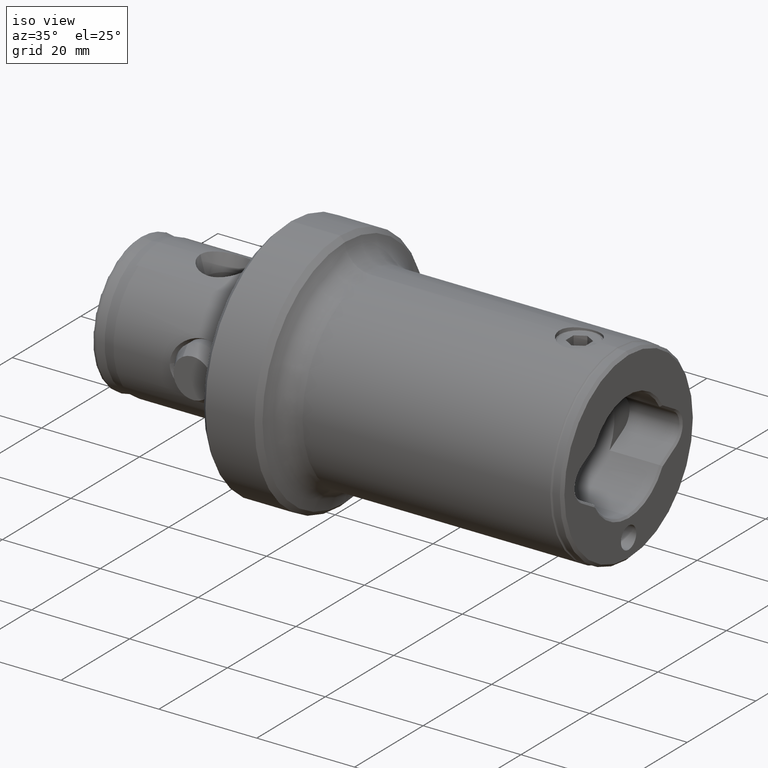
[diagram: clean part render]
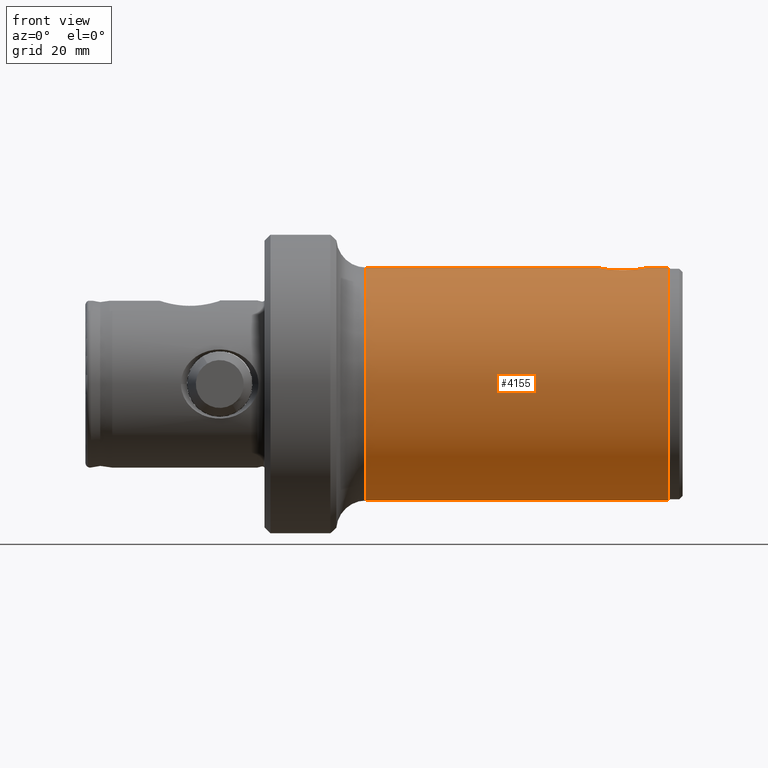
[diagram: tour spotlight — one face highlighted and labeled with its STEP entity id]
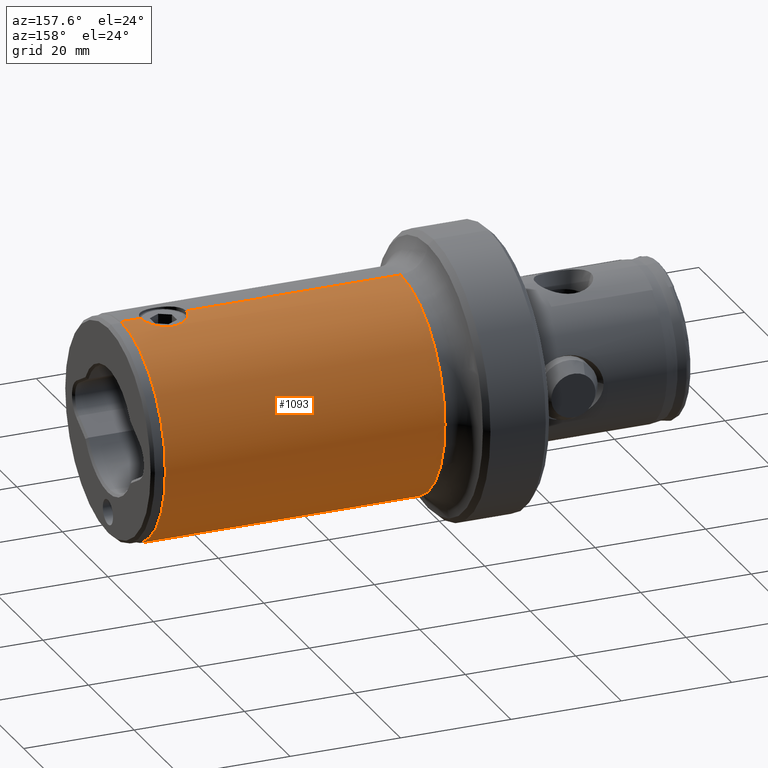
[diagram: tour spotlight — one face highlighted and labeled with its STEP entity id]
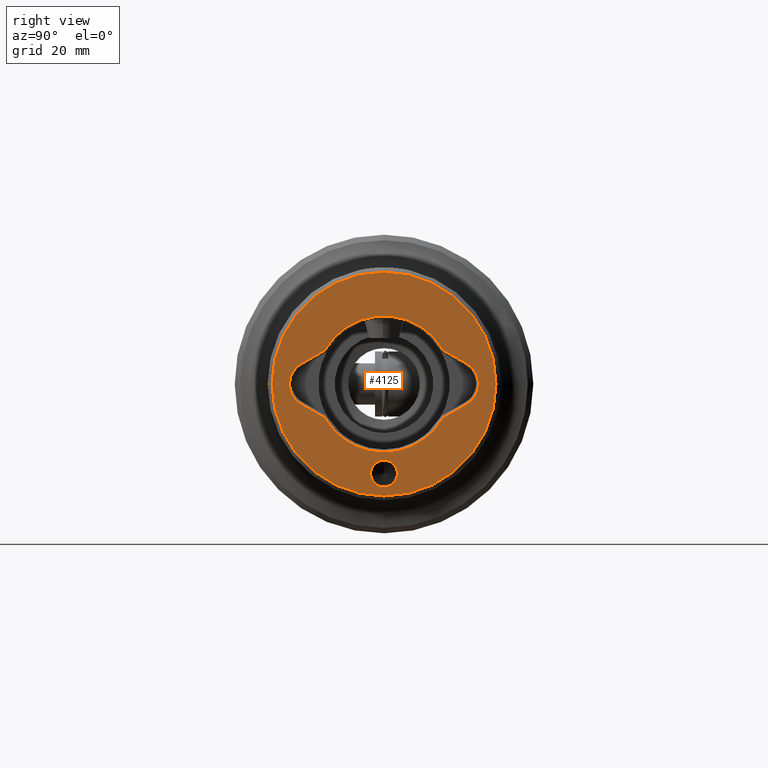
[diagram: tour spotlight — one face highlighted and labeled with its STEP entity id]
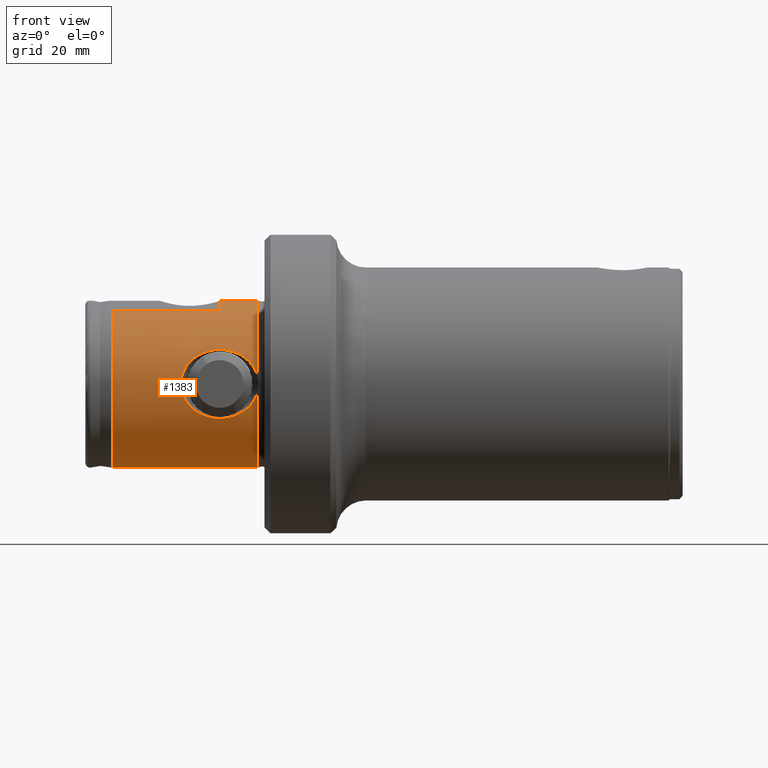
[diagram: tour spotlight — one face highlighted and labeled with its STEP entity id]
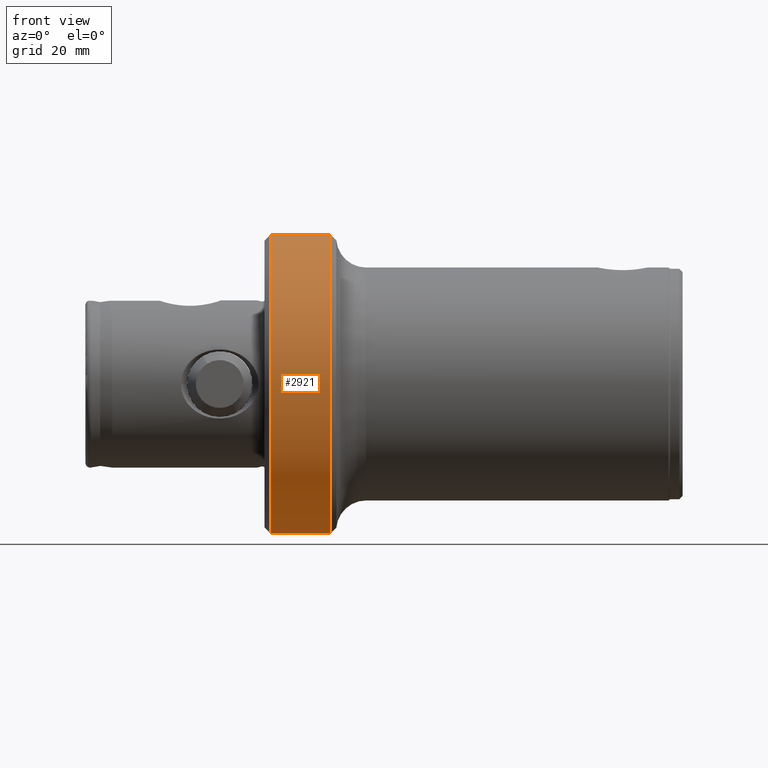
[diagram: tour spotlight — one face highlighted and labeled with its STEP entity id]
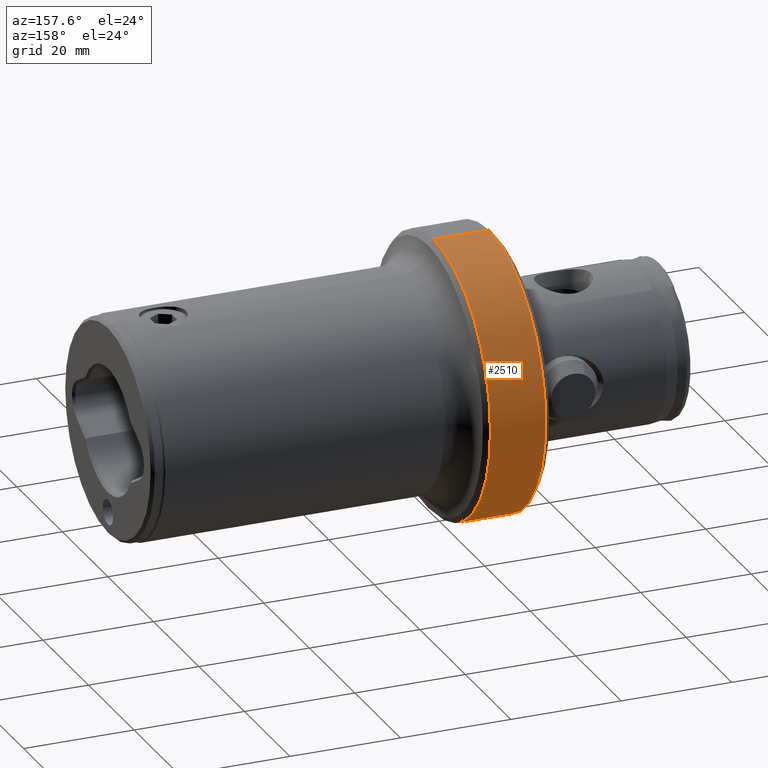
[diagram: tour spotlight — one face highlighted and labeled with its STEP entity id]
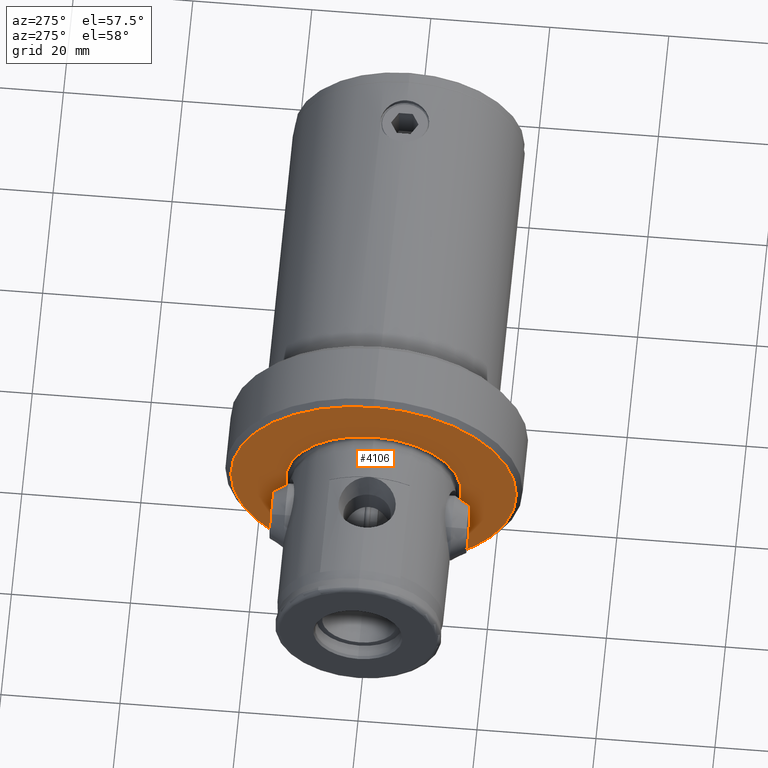
[diagram: tour spotlight — one face highlighted and labeled with its STEP entity id]
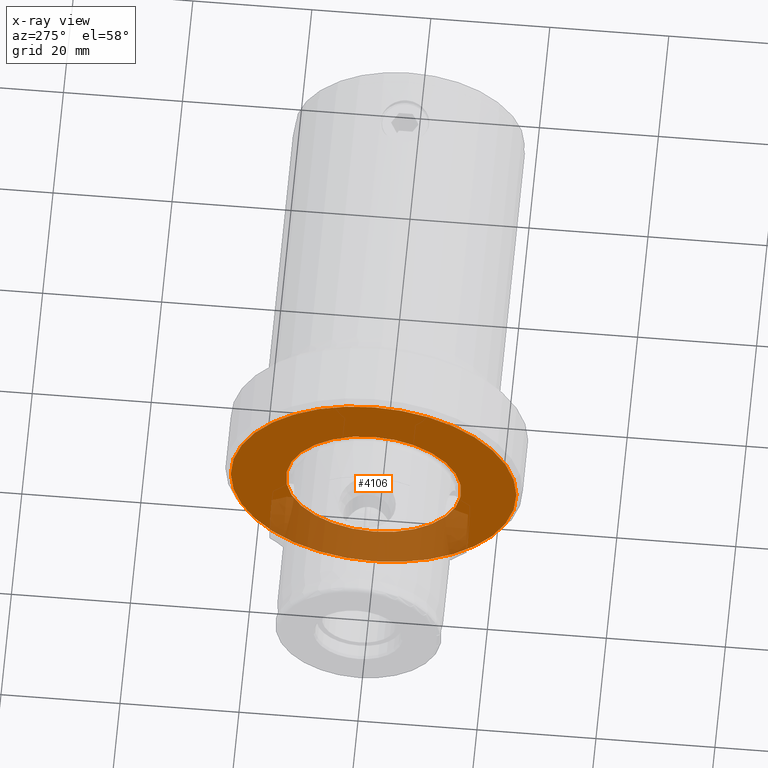
[diagram: x-ray of the same camera — body ghosted, this tour face saturated]
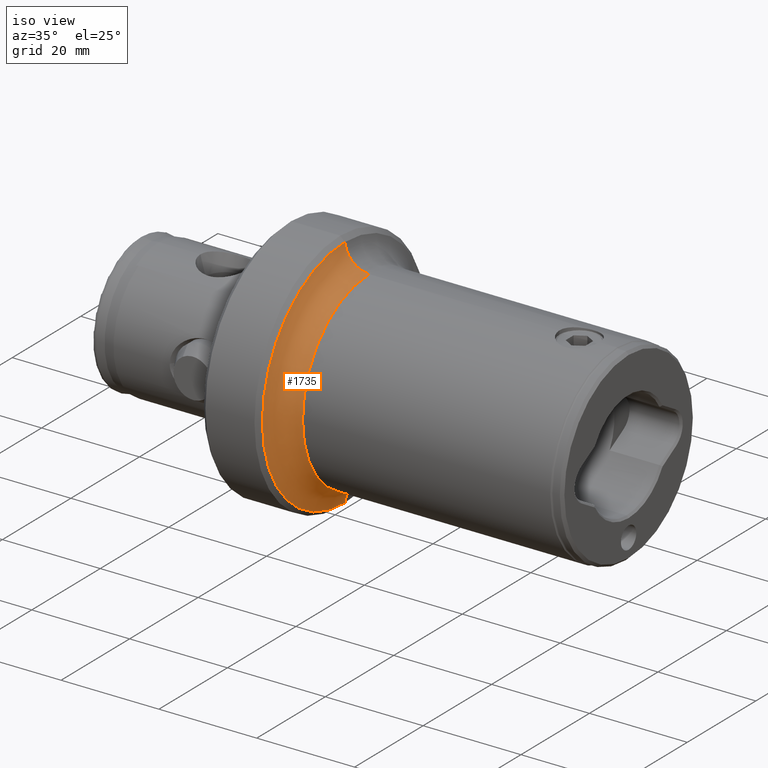
[diagram: tour spotlight — one face highlighted and labeled with its STEP entity id]
A machine part: a face-by-face anatomy tour. The part has 151 B-rep faces; the first image is the clean iso view, then the 8 largest visible faces are spotlighted one at a time (largest first), each with its STEP entity span.

Face 1 — front view, entity #4155. In plain terms, the highlighted cylindrical surface (partial cylindrical patch) has radius 19.5 mm, axis along (-1, -0, -0).
Definition (entity closure, byte-faithful):
#160 = CARTESIAN_POINT ( 'NONE',  ( 99.99999999999997200, 2.388061258337338200E-015, -19.50000000000000000 ) ) ;
#225 = CARTESIAN_POINT ( 'NONE',  ( 97.63431457505078000, 0.0000000000000000000, 0.0000000000000000000 ) ) ;
#259 = CARTESIAN_POINT ( 'NONE',  ( 93.83939747266707300, -1.324675195069625800, 19.45654632020389100 ) ) ;
#271 = CARTESIAN_POINT ( 'NONE',  ( 89.68337194896004400, -4.100106221824667300, 19.06407954719114900 ) ) ;
#282 = CARTESIAN_POINT ( 'NONE',  ( 85.98226293356502500, -1.067393354493405100, 19.47255191893436400 ) ) ;
#283 = CARTESIAN_POINT ( 'NONE',  ( 97.63431457505078000, 2.388061258337338200E-015, -19.50000000000000000 ) ) ;
#410 = EDGE_CURVE ( 'NONE', #5153, #3333, #2424, .T. ) ;
#415 = LINE ( 'NONE', #160, #2453 ) ;
#422 = CARTESIAN_POINT ( 'NONE',  ( 85.84999999999998000, 8.331128465602896800E-022, 19.50000000000000000 ) ) ;
#494 = ORIENTED_EDGE ( 'NONE', *, *, #5201, .T. ) ;
#504 = CARTESIAN_POINT ( 'NONE',  ( 99.99999999999997200, 0.0000000000000000000, 0.0000000000000000000 ) ) ;
#595 = AXIS2_PLACEMENT_3D ( 'NONE', #504, #1711, #2961 ) ;
#641 = DIRECTION ( 'NONE',  ( 0.0000000000000000000, 0.0000000000000000000, 1.000000000000000000 ) ) ;
#667 = CARTESIAN_POINT ( 'NONE',  ( 93.50726110560384500, -2.056105915997350000, 19.39259271072293000 ) ) ;
#685 = CARTESIAN_POINT ( 'NONE',  ( 88.88435084722979700, -3.968178360778799300, 19.09205182041328200 ) ) ;
#689 = CIRCLE ( 'NONE', #4283, 19.50000000000000000 ) ;
#706 = CARTESIAN_POINT ( 'NONE',  ( 85.84999999999999400, -0.2680036474306260500, 19.50000000000000400 ) ) ;
#981 = DIRECTION ( 'NONE',  ( -1.000000000000000000, -0.0000000000000000000, -0.0000000000000000000 ) ) ;
#990 = CARTESIAN_POINT ( 'NONE',  ( 99.99999999999997200, 0.0000000000000000000, 19.50000000000000000 ) ) ;
#1069 = CARTESIAN_POINT ( 'NONE',  ( 93.03697798090429700, -2.711395645052585600, 19.31151647059022700 ) ) ;
#1089 = CARTESIAN_POINT ( 'NONE',  ( 88.13105040564157400, -3.684276072095359600, 19.14907716997098300 ) ) ;
#1185 = CARTESIAN_POINT ( 'NONE',  ( 46.99999999999998600, 2.388061258337338200E-015, -19.50000000000000000 ) ) ;
#1194 = FACE_OUTER_BOUND ( 'NONE', #1526, .T. ) ;
#1397 = DIRECTION ( 'NONE',  ( -1.000000000000000000, -0.0000000000000000000, -0.0000000000000000000 ) ) ;
#1411 = EDGE_CURVE ( 'NONE', #2403, #1631, #1925, .T. ) ;
#1434 = ORIENTED_EDGE ( 'NONE', *, *, #3513, .T. ) ;
#1468 = CARTESIAN_POINT ( 'NONE',  ( 92.45384158687022600, -3.257822242670017900, 19.22653787539414000 ) ) ;
#1475 = CARTESIAN_POINT ( 'NONE',  ( 46.99999999999998600, 0.0000000000000000000, 19.50000000000000000 ) ) ;
#1480 = CARTESIAN_POINT ( 'NONE',  ( 87.44888900824587100, -3.259686220076615000, 19.22620915013956700 ) ) ;
#1526 = EDGE_LOOP ( 'NONE', ( #4918, #2852, #4073, #2394, #1434, #494 ) ) ;
#1543 = CARTESIAN_POINT ( 'NONE',  ( 46.99999999999998600, 0.0000000000000000000, 0.0000000000000000000 ) ) ;
#1585 = AXIS2_PLACEMENT_3D ( 'NONE', #225, #3112, #641 ) ;
#1630 = VERTEX_POINT ( 'NONE', #1185 ) ;
#1631 = VERTEX_POINT ( 'NONE', #3248 ) ;
#1711 = DIRECTION ( 'NONE',  ( -1.000000000000000000, -0.0000000000000000000, -0.0000000000000000000 ) ) ;
#1880 = CARTESIAN_POINT ( 'NONE',  ( 91.76839283879074600, -3.684386025832484500, 19.14905174585760500 ) ) ;
#1900 = CARTESIAN_POINT ( 'NONE',  ( 86.86013736995555200, -2.708370604095062400, 19.31196047944093100 ) ) ;
#1925 = CIRCLE ( 'NONE', #1585, 19.50000000000000000 ) ;
#1960 = DIRECTION ( 'NONE',  ( 0.0000000000000000000, 0.0000000000000000000, 1.000000000000000000 ) ) ;
#2185 = EDGE_CURVE ( 'NONE', #1631, #5153, #3374, .T. ) ;
#2294 = CARTESIAN_POINT ( 'NONE',  ( 91.01608768346727600, -3.968170064787012400, 19.09205423490344000 ) ) ;
#2308 = CARTESIAN_POINT ( 'NONE',  ( 86.39429843037316900, -2.058681116985212600, 19.39230968629137300 ) ) ;
#2394 = ORIENTED_EDGE ( 'NONE', *, *, #410, .T. ) ;
#2403 = VERTEX_POINT ( 'NONE', #283 ) ;
#2424 = B_SPLINE_CURVE_WITH_KNOTS ( 'NONE', 3,
 ( #5166, #3935, #4313, #2705, #259, #3136, #667, #3542, #1069, #3947, #1468, #4354, #1880, #4770, #2294, #5186, #2718, #271, #3155, #685, #3554, #1089, #3963, #1480, #4371, #1900, #4787, #2308, #5209, #2737, #282, #3168, #706, #3569 ),
 .UNSPECIFIED., .F., .F.,
 ( 4, 2, 2, 2, 2, 2, 2, 2, 2, 2, 2, 2, 2, 2, 2, 2, 4 ),
 ( 0.0000000000000000000, 0.0008034002598304854800, 0.001606800519660971000, 0.002410200779491456600, 0.003213601039321941900, 0.004017001299152427700, 0.004820401558982913100, 0.005623801818813399300, 0.006427202078643885600, 0.007230602338474371000, 0.008034002598304857200, 0.008837402858135343400, 0.009640803117965826200, 0.01044420337779631200, 0.01124760363762679900, 0.01205100389745728300, 0.01285440415728777100 ),
 .UNSPECIFIED. ) ;
#2453 = VECTOR ( 'NONE', #981, 1000.000000000000000 ) ;
#2705 = CARTESIAN_POINT ( 'NONE',  ( 93.91861850791309500, -1.063830633642383100, 19.47273252741901200 ) ) ;
#2718 = CARTESIAN_POINT ( 'NONE',  ( 90.21988489939042200, -4.099893131403268500, 19.06412537524208900 ) ) ;
#2737 = CARTESIAN_POINT ( 'NONE',  ( 86.06007070854992900, -1.323024176926442800, 19.45665416017582000 ) ) ;
#2852 = ORIENTED_EDGE ( 'NONE', *, *, #1411, .T. ) ;
#2858 = EDGE_CURVE ( 'NONE', #2403, #1630, #415, .T. ) ;
#2961 = DIRECTION ( 'NONE',  ( 0.0000000000000000000, 0.0000000000000000000, 1.000000000000000000 ) ) ;
#3044 = VERTEX_POINT ( 'NONE', #1475 ) ;
#3112 = DIRECTION ( 'NONE',  ( -1.000000000000000000, -0.0000000000000000000, -0.0000000000000000000 ) ) ;
#3136 = CARTESIAN_POINT ( 'NONE',  ( 93.63328049574153100, -1.820884911934749000, 19.41639351733891800 ) ) ;
#3155 = CARTESIAN_POINT ( 'NONE',  ( 89.41080289357597600, -4.073243682886753100, 19.06991264049530000 ) ) ;
#3168 = CARTESIAN_POINT ( 'NONE',  ( 85.87685971014137500, -0.5401797670304890900, 19.49430205542383700 ) ) ;
#3248 = CARTESIAN_POINT ( 'NONE',  ( 97.63431457505078000, 0.0000000000000000000, 19.50000000000000000 ) ) ;
#3333 = VERTEX_POINT ( 'NONE', #422 ) ;
#3374 = LINE ( 'NONE', #990, #5177 ) ;
#3435 = CARTESIAN_POINT ( 'NONE',  ( 99.99999999999997200, 0.0000000000000000000, 19.50000000000000000 ) ) ;
#3505 = LINE ( 'NONE', #3435, #4453 ) ;
#3513 = EDGE_CURVE ( 'NONE', #3333, #3044, #3505, .T. ) ;
#3542 = CARTESIAN_POINT ( 'NONE',  ( 93.20966850091616600, -2.501247563792167000, 19.34021675696545400 ) ) ;
#3554 = CARTESIAN_POINT ( 'NONE',  ( 88.62839487093504000, -3.890479107392837800, 19.10825002327158000 ) ) ;
#3569 = CARTESIAN_POINT ( 'NONE',  ( 85.84999999999998000, 8.331128465602896800E-022, 19.50000000000000000 ) ) ;
#3577 = CARTESIAN_POINT ( 'NONE',  ( 94.04999999999996900, 0.0000000000000000000, 19.50000000000000000 ) ) ;
#3867 = DIRECTION ( 'NONE',  ( -1.000000000000000000, -0.0000000000000000000, -0.0000000000000000000 ) ) ;
#3935 = CARTESIAN_POINT ( 'NONE',  ( 94.04999999999998300, -0.2717129788221738200, 19.50000000000000700 ) ) ;
#3947 = CARTESIAN_POINT ( 'NONE',  ( 92.65978721893009200, -3.088389973225755400, 19.25482230796136200 ) ) ;
#3963 = CARTESIAN_POINT ( 'NONE',  ( 87.89219658277151800, -3.556199592609137200, 19.17357861735244000 ) ) ;
#4073 = ORIENTED_EDGE ( 'NONE', *, *, #2185, .T. ) ;
#4092 = CYLINDRICAL_SURFACE ( 'NONE', #595, 19.50000000000000000 ) ;
#4155 = ADVANCED_FACE ( 'NONE', ( #1194 ), #4092, .T. ) ;
#4283 = AXIS2_PLACEMENT_3D ( 'NONE', #1543, #4431, #1960 ) ;
#4313 = CARTESIAN_POINT ( 'NONE',  ( 94.02325816568186700, -0.5387359224444965300, 19.49432767005177800 ) ) ;
#4354 = CARTESIAN_POINT ( 'NONE',  ( 92.00586200666687400, -3.557535645151013600, 19.17334359396610600 ) ) ;
#4371 = CARTESIAN_POINT ( 'NONE',  ( 87.24094251225754700, -3.089260417928197300, 19.25470225578252600 ) ) ;
#4431 = DIRECTION ( 'NONE',  ( 1.000000000000000000, 0.0000000000000000000, 0.0000000000000000000 ) ) ;
#4453 = VECTOR ( 'NONE', #1397, 1000.000000000000000 ) ;
#4770 = CARTESIAN_POINT ( 'NONE',  ( 91.27532020535326800, -3.889058916601459100, 19.10853484430672800 ) ) ;
#4787 = CARTESIAN_POINT ( 'NONE',  ( 86.69108338787678700, -2.502127916175687100, 19.34009304014735200 ) ) ;
#4918 = ORIENTED_EDGE ( 'NONE', *, *, #2858, .F. ) ;
#5153 = VERTEX_POINT ( 'NONE', #3577 ) ;
#5166 = CARTESIAN_POINT ( 'NONE',  ( 94.04999999999996900, 0.0000000000000000000, 19.50000000000000000 ) ) ;
#5177 = VECTOR ( 'NONE', #3867, 1000.000000000000000 ) ;
#5186 = CARTESIAN_POINT ( 'NONE',  ( 90.48643983491456300, -4.073714388052909600, 19.06981278503114700 ) ) ;
#5201 = EDGE_CURVE ( 'NONE', #3044, #1630, #689, .T. ) ;
#5209 = CARTESIAN_POINT ( 'NONE',  ( 86.26559137336622000, -1.818536757175802900, 19.41660907945101800 ) ) ;

Face 2 — auxiliary view, entity #1093. In plain terms, the highlighted cylindrical surface (partial cylindrical patch) has radius 19.5 mm, axis along (-1, -0, -0).
Definition (entity closure, byte-faithful):
#15 = CARTESIAN_POINT ( 'NONE',  ( 85.84999999999998000, 8.331128465602896800E-022, 19.50000000000000000 ) ) ;
#37 = CARTESIAN_POINT ( 'NONE',  ( 88.62470393943628700, 3.889242478390361000, 19.10850376499960400 ) ) ;
#59 = CARTESIAN_POINT ( 'NONE',  ( 93.20607366394209200, 2.506163181675742800, 19.33960036030278600 ) ) ;
#160 = CARTESIAN_POINT ( 'NONE',  ( 99.99999999999997200, 2.388061258337338200E-015, -19.50000000000000000 ) ) ;
#283 = CARTESIAN_POINT ( 'NONE',  ( 97.63431457505078000, 2.388061258337338200E-015, -19.50000000000000000 ) ) ;
#415 = LINE ( 'NONE', #160, #2453 ) ;
#422 = CARTESIAN_POINT ( 'NONE',  ( 85.84999999999998000, 8.331128465602896800E-022, 19.50000000000000000 ) ) ;
#445 = CARTESIAN_POINT ( 'NONE',  ( 85.87600710443075500, 0.5347785149170460900, 19.49447970699055000 ) ) ;
#462 = CARTESIAN_POINT ( 'NONE',  ( 89.40825263077862000, 4.072837913140867600, 19.06999901593888300 ) ) ;
#476 = CARTESIAN_POINT ( 'NONE',  ( 93.63257333203401300, 1.822078081037237900, 19.41626160705733300 ) ) ;
#559 = ORIENTED_EDGE ( 'NONE', *, *, #2185, .F. ) ;
#845 = CARTESIAN_POINT ( 'NONE',  ( 86.06032631130587200, 1.323564962576112300, 19.45660521771094800 ) ) ;
#861 = CARTESIAN_POINT ( 'NONE',  ( 90.21872880211225300, 4.100125537003150600, 19.06407539319491600 ) ) ;
#885 = CARTESIAN_POINT ( 'NONE',  ( 93.91745484172246000, 1.068671708260930300, 19.47249388388284100 ) ) ;
#927 = CARTESIAN_POINT ( 'NONE',  ( 97.63431457505078000, 0.0000000000000000000, 0.0000000000000000000 ) ) ;
#936 = DIRECTION ( 'NONE',  ( 0.0000000000000000000, 0.0000000000000000000, 1.000000000000000000 ) ) ;
#981 = DIRECTION ( 'NONE',  ( -1.000000000000000000, -0.0000000000000000000, -0.0000000000000000000 ) ) ;
#990 = CARTESIAN_POINT ( 'NONE',  ( 99.99999999999997200, 0.0000000000000000000, 19.50000000000000000 ) ) ;
#1039 = AXIS2_PLACEMENT_3D ( 'NONE', #3379, #4628, #936 ) ;
#1093 = ADVANCED_FACE ( 'NONE', ( #3125 ), #5168, .T. ) ;
#1108 = CARTESIAN_POINT ( 'NONE',  ( 46.99999999999998600, 0.0000000000000000000, 0.0000000000000000000 ) ) ;
#1185 = CARTESIAN_POINT ( 'NONE',  ( 46.99999999999998600, 2.388061258337338200E-015, -19.50000000000000000 ) ) ;
#1238 = ORIENTED_EDGE ( 'NONE', *, *, #3095, .T. ) ;
#1250 = CARTESIAN_POINT ( 'NONE',  ( 86.39301943229537500, 2.056664157945235600, 19.39253845156489200 ) ) ;
#1267 = EDGE_CURVE ( 'NONE', #3333, #5153, #4282, .T. ) ;
#1271 = CARTESIAN_POINT ( 'NONE',  ( 91.01103124408878400, 3.969383796158372700, 19.09180018694137700 ) ) ;
#1286 = CARTESIAN_POINT ( 'NONE',  ( 94.04999999999994000, 0.2716420588160324300, 19.49999999999999300 ) ) ;
#1333 = DIRECTION ( 'NONE',  ( 0.0000000000000000000, 0.0000000000000000000, 1.000000000000000000 ) ) ;
#1372 = ORIENTED_EDGE ( 'NONE', *, *, #3513, .F. ) ;
#1397 = DIRECTION ( 'NONE',  ( -1.000000000000000000, -0.0000000000000000000, -0.0000000000000000000 ) ) ;
#1475 = CARTESIAN_POINT ( 'NONE',  ( 46.99999999999998600, 0.0000000000000000000, 19.50000000000000000 ) ) ;
#1489 = ORIENTED_EDGE ( 'NONE', *, *, #1267, .T. ) ;
#1515 = DIRECTION ( 'NONE',  ( 0.0000000000000000000, 0.0000000000000000000, 1.000000000000000000 ) ) ;
#1630 = VERTEX_POINT ( 'NONE', #1185 ) ;
#1631 = VERTEX_POINT ( 'NONE', #3248 ) ;
#1650 = CARTESIAN_POINT ( 'NONE',  ( 86.86044424509106000, 2.708515630693937700, 19.31192622209973600 ) ) ;
#1662 = CARTESIAN_POINT ( 'NONE',  ( 91.76762428016937200, 3.684841646035470000, 19.14896567468257500 ) ) ;
#2061 = CARTESIAN_POINT ( 'NONE',  ( 87.44843460934087900, 3.259352022498773300, 19.22626675637626500 ) ) ;
#2083 = CARTESIAN_POINT ( 'NONE',  ( 92.44946989160749200, 3.261087052161442600, 19.22597762569196800 ) ) ;
#2086 = EDGE_CURVE ( 'NONE', #1631, #2403, #4966, .T. ) ;
#2185 = EDGE_CURVE ( 'NONE', #1631, #5153, #3374, .T. ) ;
#2225 = EDGE_LOOP ( 'NONE', ( #4272, #4389, #1238, #1372, #1489, #559 ) ) ;
#2403 = VERTEX_POINT ( 'NONE', #283 ) ;
#2453 = VECTOR ( 'NONE', #981, 1000.000000000000000 ) ;
#2489 = CARTESIAN_POINT ( 'NONE',  ( 88.12705844430847400, 3.682322743648983400, 19.14945488530484100 ) ) ;
#2507 = CARTESIAN_POINT ( 'NONE',  ( 93.03576394513692100, 2.712749425493186500, 19.31132366521952900 ) ) ;
#2858 = EDGE_CURVE ( 'NONE', #2403, #1630, #415, .T. ) ;
#2892 = CARTESIAN_POINT ( 'NONE',  ( 85.84999999999996600, 0.2679336955998207200, 19.50000000000000000 ) ) ;
#2910 = CARTESIAN_POINT ( 'NONE',  ( 88.88384900634642300, 3.967974412405843100, 19.09209391861248800 ) ) ;
#2931 = CARTESIAN_POINT ( 'NONE',  ( 93.50655283232788400, 2.057620360772301800, 19.39245199659769600 ) ) ;
#3044 = VERTEX_POINT ( 'NONE', #1475 ) ;
#3066 = AXIS2_PLACEMENT_3D ( 'NONE', #927, #3807, #1333 ) ;
#3095 = EDGE_CURVE ( 'NONE', #1630, #3044, #5311, .T. ) ;
#3125 = FACE_OUTER_BOUND ( 'NONE', #2225, .T. ) ;
#3248 = CARTESIAN_POINT ( 'NONE',  ( 97.63431457505078000, 0.0000000000000000000, 19.50000000000000000 ) ) ;
#3312 = CARTESIAN_POINT ( 'NONE',  ( 85.98180420751570800, 1.066221518107482600, 19.47264488405742400 ) ) ;
#3333 = VERTEX_POINT ( 'NONE', #422 ) ;
#3335 = CARTESIAN_POINT ( 'NONE',  ( 89.67745411251785000, 4.099873574573569700, 19.06412958120875000 ) ) ;
#3348 = CARTESIAN_POINT ( 'NONE',  ( 93.83781428936632100, 1.328990192064361400, 19.45623212229134700 ) ) ;
#3374 = LINE ( 'NONE', #990, #5177 ) ;
#3379 = CARTESIAN_POINT ( 'NONE',  ( 99.99999999999997200, 0.0000000000000000000, 0.0000000000000000000 ) ) ;
#3435 = CARTESIAN_POINT ( 'NONE',  ( 99.99999999999997200, 0.0000000000000000000, 19.50000000000000000 ) ) ;
#3505 = LINE ( 'NONE', #3435, #4453 ) ;
#3513 = EDGE_CURVE ( 'NONE', #3333, #3044, #3505, .T. ) ;
#3577 = CARTESIAN_POINT ( 'NONE',  ( 94.04999999999996900, 0.0000000000000000000, 19.50000000000000000 ) ) ;
#3723 = CARTESIAN_POINT ( 'NONE',  ( 86.26499609809542300, 1.817176892222171600, 19.41672420750704100 ) ) ;
#3739 = CARTESIAN_POINT ( 'NONE',  ( 90.48539333265135600, 4.073714398615807800, 19.06981103990832700 ) ) ;
#3756 = CARTESIAN_POINT ( 'NONE',  ( 94.02326684601328600, 0.5396798516833721800, 19.49432796829833900 ) ) ;
#3807 = DIRECTION ( 'NONE',  ( -1.000000000000000000, -0.0000000000000000000, -0.0000000000000000000 ) ) ;
#3867 = DIRECTION ( 'NONE',  ( -1.000000000000000000, -0.0000000000000000000, -0.0000000000000000000 ) ) ;
#3994 = DIRECTION ( 'NONE',  ( 1.000000000000000000, 0.0000000000000000000, 0.0000000000000000000 ) ) ;
#4124 = CARTESIAN_POINT ( 'NONE',  ( 86.69136273160555100, 2.502650868706119100, 19.34004016757369400 ) ) ;
#4142 = CARTESIAN_POINT ( 'NONE',  ( 91.27251019756940300, 3.890087757049132600, 19.10832702276641700 ) ) ;
#4163 = CARTESIAN_POINT ( 'NONE',  ( 94.04999999999996900, 0.0000000000000000000, 19.50000000000000000 ) ) ;
#4272 = ORIENTED_EDGE ( 'NONE', *, *, #2086, .T. ) ;
#4282 = B_SPLINE_CURVE_WITH_KNOTS ( 'NONE', 3,
 ( #15, #2892, #445, #3312, #845, #3723, #1250, #4124, #1650, #4537, #2061, #4963, #2489, #37, #2910, #462, #3335, #861, #3739, #1271, #4142, #1662, #4555, #2083, #4980, #2507, #59, #2931, #476, #3348, #885, #3756, #1286, #4163 ),
 .UNSPECIFIED., .F., .F.,
 ( 4, 2, 2, 2, 2, 2, 2, 2, 2, 2, 2, 2, 2, 2, 2, 2, 4 ),
 ( 0.01285440415728777100, 0.01365759472102053000, 0.01446078528475328900, 0.01526397584848604800, 0.01606716641221880800, 0.01687035697595156600, 0.01767354753968432600, 0.01847673810341708300, 0.01927992866714984400, 0.02008311923088260100, 0.02088630979461536200, 0.02168950035834811900, 0.02249269092208087600, 0.02329588148581363300, 0.02409907204954639000, 0.02490226261327915100, 0.02570545317701190800 ),
 .UNSPECIFIED. ) ;
#4389 = ORIENTED_EDGE ( 'NONE', *, *, #2858, .T. ) ;
#4453 = VECTOR ( 'NONE', #1397, 1000.000000000000000 ) ;
#4537 = CARTESIAN_POINT ( 'NONE',  ( 87.23816060137087900, 3.086638747966348200, 19.25510873947715500 ) ) ;
#4555 = CARTESIAN_POINT ( 'NONE',  ( 92.00299688711840000, 3.559106950108314100, 19.17304519743991900 ) ) ;
#4628 = DIRECTION ( 'NONE',  ( -1.000000000000000000, -0.0000000000000000000, -0.0000000000000000000 ) ) ;
#4669 = AXIS2_PLACEMENT_3D ( 'NONE', #1108, #3994, #1515 ) ;
#4963 = CARTESIAN_POINT ( 'NONE',  ( 87.89200889041920600, 3.556104273386343700, 19.17359724701417200 ) ) ;
#4966 = CIRCLE ( 'NONE', #3066, 19.50000000000000000 ) ;
#4980 = CARTESIAN_POINT ( 'NONE',  ( 92.65883272012622700, 3.089202787936395000, 19.25468922842919600 ) ) ;
#5153 = VERTEX_POINT ( 'NONE', #3577 ) ;
#5168 = CYLINDRICAL_SURFACE ( 'NONE', #1039, 19.50000000000000000 ) ;
#5177 = VECTOR ( 'NONE', #3867, 1000.000000000000000 ) ;
#5311 = CIRCLE ( 'NONE', #4669, 19.50000000000000000 ) ;

Face 3 — right view, entity #4125. In plain terms, the highlighted planar face has unit normal (1, 0, 0).
Definition (entity closure, byte-faithful):
#19 = AXIS2_PLACEMENT_3D ( 'NONE', #4150, #2106, #5009 ) ;
#58 = AXIS2_PLACEMENT_3D ( 'NONE', #5055, #2581, #133 ) ;
#124 = DIRECTION ( 'NONE',  ( 0.0000000000000000000, 0.0000000000000000000, 1.000000000000000000 ) ) ;
#133 = DIRECTION ( 'NONE',  ( 0.0000000000000000000, 0.0000000000000000000, -1.000000000000000000 ) ) ;
#221 = CARTESIAN_POINT ( 'NONE',  ( 99.99999999999997200, 13.86000000000001200, 3.377499074759307400 ) ) ;
#295 = LINE ( 'NONE', #221, #3446 ) ;
#308 = CARTESIAN_POINT ( 'NONE',  ( 99.99999999999997200, 0.0000000000000000000, 0.0000000000000000000 ) ) ;
#339 = CARTESIAN_POINT ( 'NONE',  ( 99.99999999999997200, 0.0000000000000000000, -11.39999999999993800 ) ) ;
#347 = VECTOR ( 'NONE', #4040, 1000.000000000000100 ) ;
#354 = CIRCLE ( 'NONE', #58, 2.249999999999998700 ) ;
#466 = VERTEX_POINT ( 'NONE', #339 ) ;
#518 = ORIENTED_EDGE ( 'NONE', *, *, #2694, .T. ) ;
#522 = VERTEX_POINT ( 'NONE', #805 ) ;
#529 = VERTEX_POINT ( 'NONE', #3274 ) ;
#531 = DIRECTION ( 'NONE',  ( -1.000000000000000000, -0.0000000000000000000, -0.0000000000000000000 ) ) ;
#571 = VECTOR ( 'NONE', #1701, 1000.000000000000100 ) ;
#646 = EDGE_CURVE ( 'NONE', #529, #1327, #800, .T. ) ;
#722 = DIRECTION ( 'NONE',  ( 0.0000000000000000000, -1.776356839400250500E-015, -1.000000000000000000 ) ) ;
#734 = LINE ( 'NONE', #1560, #347 ) ;
#752 = VERTEX_POINT ( 'NONE', #987 ) ;
#800 = CIRCLE ( 'NONE', #4824, 18.75000000000000000 ) ;
#805 = CARTESIAN_POINT ( 'NONE',  ( 99.99999999999997200, 0.0000000000000000000, -17.24999999999999600 ) ) ;
#815 = EDGE_LOOP ( 'NONE', ( #1634, #1011 ) ) ;
#939 = ORIENTED_EDGE ( 'NONE', *, *, #4405, .T. ) ;
#942 = CIRCLE ( 'NONE', #1556, 11.39999999999999300 ) ;
#987 = CARTESIAN_POINT ( 'NONE',  ( 99.99999999999997200, 13.86000000000001200, 3.377499074759307000 ) ) ;
#992 = LINE ( 'NONE', #2177, #3061 ) ;
#1010 = CARTESIAN_POINT ( 'NONE',  ( 99.99999999999997200, 9.890284626598258900, -5.669415314198987600 ) ) ;
#1011 = ORIENTED_EDGE ( 'NONE', *, *, #646, .F. ) ;
#1012 = EDGE_CURVE ( 'NONE', #522, #1700, #4449, .T. ) ;
#1077 = FACE_BOUND ( 'NONE', #3345, .T. ) ;
#1109 = CARTESIAN_POINT ( 'NONE',  ( 99.99999999999997200, -11.91000000000001800, 0.0000000000000000000 ) ) ;
#1128 = ORIENTED_EDGE ( 'NONE', *, *, #1200, .T. ) ;
#1171 = CIRCLE ( 'NONE', #3667, 11.39999999999999100 ) ;
#1175 = VERTEX_POINT ( 'NONE', #1413 ) ;
#1200 = EDGE_CURVE ( 'NONE', #752, #5211, #3948, .T. ) ;
#1240 = CARTESIAN_POINT ( 'NONE',  ( 99.99999999999997200, 2.755455298081541800E-016, -12.75000000000000200 ) ) ;
#1327 = VERTEX_POINT ( 'NONE', #2566 ) ;
#1343 = AXIS2_PLACEMENT_3D ( 'NONE', #308, #3186, #722 ) ;
#1379 = EDGE_CURVE ( 'NONE', #1175, #1783, #992, .T. ) ;
#1413 = CARTESIAN_POINT ( 'NONE',  ( 99.99999999999997200, -13.86000000000001200, 3.377499074759300800 ) ) ;
#1414 = VERTEX_POINT ( 'NONE', #4718 ) ;
#1517 = DIRECTION ( 'NONE',  ( 0.0000000000000000000, 0.0000000000000000000, -1.000000000000000000 ) ) ;
#1547 = CARTESIAN_POINT ( 'NONE',  ( 99.99999999999997200, 11.91000000000000400, -3.469446951953614200E-015 ) ) ;
#1556 = AXIS2_PLACEMENT_3D ( 'NONE', #1959, #4854, #2372 ) ;
#1560 = CARTESIAN_POINT ( 'NONE',  ( 99.99999999999997200, -13.86000000000002400, -3.377499074759313200 ) ) ;
#1573 = EDGE_CURVE ( 'NONE', #3395, #5023, #734, .T. ) ;
#1634 = ORIENTED_EDGE ( 'NONE', *, *, #1780, .F. ) ;
#1691 = PLANE ( 'NONE',  #19 ) ;
#1700 = VERTEX_POINT ( 'NONE', #1240 ) ;
#1701 = DIRECTION ( 'NONE',  ( 0.0000000000000000000, -0.8660254037844389300, -0.4999999999999995600 ) ) ;
#1721 = DIRECTION ( 'NONE',  ( 1.000000000000000000, -0.0000000000000000000, -0.0000000000000000000 ) ) ;
#1765 = ORIENTED_EDGE ( 'NONE', *, *, #4819, .T. ) ;
#1780 = EDGE_CURVE ( 'NONE', #1327, #529, #2983, .T. ) ;
#1783 = VERTEX_POINT ( 'NONE', #4617 ) ;
#1825 = CIRCLE ( 'NONE', #4983, 3.899999999999988400 ) ;
#1959 = CARTESIAN_POINT ( 'NONE',  ( 99.99999999999997200, 0.0000000000000000000, 0.0000000000000000000 ) ) ;
#1961 = DIRECTION ( 'NONE',  ( 0.0000000000000000000, 0.0000000000000000000, -1.000000000000000000 ) ) ;
#2073 = CIRCLE ( 'NONE', #1343, 11.39999999999999100 ) ;
#2104 = CARTESIAN_POINT ( 'NONE',  ( 99.99999999999997200, 0.0000000000000000000, 0.0000000000000000000 ) ) ;
#2106 = DIRECTION ( 'NONE',  ( 1.000000000000000000, 0.0000000000000000000, 0.0000000000000000000 ) ) ;
#2148 = FACE_BOUND ( 'NONE', #3911, .T. ) ;
#2161 = ORIENTED_EDGE ( 'NONE', *, *, #1573, .T. ) ;
#2177 = CARTESIAN_POINT ( 'NONE',  ( 99.99999999999997200, -9.795993735232697100, 5.723854185711017500 ) ) ;
#2220 = ORIENTED_EDGE ( 'NONE', *, *, #3410, .F. ) ;
#2298 = EDGE_CURVE ( 'NONE', #1414, #752, #295, .T. ) ;
#2324 = ORIENTED_EDGE ( 'NONE', *, *, #2298, .T. ) ;
#2372 = DIRECTION ( 'NONE',  ( 0.0000000000000000000, 8.881784197001252300E-016, -1.000000000000000000 ) ) ;
#2452 = ORIENTED_EDGE ( 'NONE', *, *, #1012, .F. ) ;
#2531 = DIRECTION ( 'NONE',  ( 0.0000000000000000000, 0.0000000000000000000, -1.000000000000000000 ) ) ;
#2566 = CARTESIAN_POINT ( 'NONE',  ( 99.99999999999997200, 0.0000000000000000000, 18.75000000000000000 ) ) ;
#2574 = DIRECTION ( 'NONE',  ( -1.000000000000000000, -0.0000000000000000000, -0.0000000000000000000 ) ) ;
#2581 = DIRECTION ( 'NONE',  ( 1.000000000000000000, -0.0000000000000000000, -0.0000000000000000000 ) ) ;
#2694 = EDGE_CURVE ( 'NONE', #466, #3395, #1171, .T. ) ;
#2866 = LINE ( 'NONE', #4179, #571 ) ;
#2982 = CARTESIAN_POINT ( 'NONE',  ( 99.99999999999997200, 0.0000000000000000000, 0.0000000000000000000 ) ) ;
#2983 = CIRCLE ( 'NONE', #3164, 18.75000000000000000 ) ;
#3061 = VECTOR ( 'NONE', #5079, 1000.000000000000000 ) ;
#3164 = AXIS2_PLACEMENT_3D ( 'NONE', #5044, #2574, #124 ) ;
#3186 = DIRECTION ( 'NONE',  ( -1.000000000000000000, -0.0000000000000000000, -0.0000000000000000000 ) ) ;
#3274 = CARTESIAN_POINT ( 'NONE',  ( 99.99999999999997200, 2.329890535377839500E-015, -18.75000000000000000 ) ) ;
#3345 = EDGE_LOOP ( 'NONE', ( #2452, #2220 ) ) ;
#3392 = DIRECTION ( 'NONE',  ( 0.0000000000000000000, 0.0000000000000000000, 1.000000000000000000 ) ) ;
#3395 = VERTEX_POINT ( 'NONE', #3812 ) ;
#3410 = EDGE_CURVE ( 'NONE', #1700, #522, #354, .T. ) ;
#3446 = VECTOR ( 'NONE', #3500, 1000.000000000000000 ) ;
#3500 = DIRECTION ( 'NONE',  ( 0.0000000000000000000, 0.8660254037844397100, -0.4999999999999981700 ) ) ;
#3532 = VERTEX_POINT ( 'NONE', #1010 ) ;
#3627 = AXIS2_PLACEMENT_3D ( 'NONE', #1547, #4432, #1961 ) ;
#3667 = AXIS2_PLACEMENT_3D ( 'NONE', #2104, #5008, #2531 ) ;
#3777 = ORIENTED_EDGE ( 'NONE', *, *, #4503, .T. ) ;
#3812 = CARTESIAN_POINT ( 'NONE',  ( 99.99999999999997200, -9.890284626598244700, -5.669415314199009800 ) ) ;
#3911 = EDGE_LOOP ( 'NONE', ( #939, #4308, #3777, #2324, #1128, #5063, #1765, #518, #2161 ) ) ;
#3948 = CIRCLE ( 'NONE', #3627, 3.899999999999988800 ) ;
#3995 = DIRECTION ( 'NONE',  ( -1.000000000000000000, -0.0000000000000000000, -0.0000000000000000000 ) ) ;
#4024 = CARTESIAN_POINT ( 'NONE',  ( 99.99999999999997200, 13.85999999999999800, -3.377499074759306600 ) ) ;
#4040 = DIRECTION ( 'NONE',  ( 0.0000000000000000000, -0.8660254037844400400, 0.4999999999999974500 ) ) ;
#4125 = ADVANCED_FACE ( 'NONE', ( #1077, #2148, #4221 ), #1691, .T. ) ;
#4150 = CARTESIAN_POINT ( 'NONE',  ( 99.99999999999997200, 0.0000000000000000000, 0.0000000000000000000 ) ) ;
#4164 = AXIS2_PLACEMENT_3D ( 'NONE', #4196, #1721, #4610 ) ;
#4179 = CARTESIAN_POINT ( 'NONE',  ( 99.99999999999997200, 9.795993735232697100, -5.723854185711022800 ) ) ;
#4196 = CARTESIAN_POINT ( 'NONE',  ( 99.99999999999997200, 0.0000000000000000000, -15.00000000000000000 ) ) ;
#4221 = FACE_OUTER_BOUND ( 'NONE', #815, .T. ) ;
#4308 = ORIENTED_EDGE ( 'NONE', *, *, #1379, .T. ) ;
#4405 = EDGE_CURVE ( 'NONE', #5023, #1175, #1825, .T. ) ;
#4432 = DIRECTION ( 'NONE',  ( -1.000000000000000000, -0.0000000000000000000, -0.0000000000000000000 ) ) ;
#4449 = CIRCLE ( 'NONE', #4164, 2.249999999999998700 ) ;
#4503 = EDGE_CURVE ( 'NONE', #1783, #1414, #942, .T. ) ;
#4609 = EDGE_CURVE ( 'NONE', #5211, #3532, #2866, .T. ) ;
#4610 = DIRECTION ( 'NONE',  ( 0.0000000000000000000, 0.0000000000000000000, -1.000000000000000000 ) ) ;
#4617 = CARTESIAN_POINT ( 'NONE',  ( 99.99999999999997200, -9.890284626598258900, 5.669415314198979600 ) ) ;
#4705 = CARTESIAN_POINT ( 'NONE',  ( 99.99999999999997200, -13.86000000000002400, -3.377499074759312300 ) ) ;
#4718 = CARTESIAN_POINT ( 'NONE',  ( 99.99999999999997200, 9.890284626598258900, 5.669415314198993800 ) ) ;
#4819 = EDGE_CURVE ( 'NONE', #3532, #466, #2073, .T. ) ;
#4824 = AXIS2_PLACEMENT_3D ( 'NONE', #2982, #531, #3392 ) ;
#4854 = DIRECTION ( 'NONE',  ( -1.000000000000000000, -0.0000000000000000000, -0.0000000000000000000 ) ) ;
#4983 = AXIS2_PLACEMENT_3D ( 'NONE', #1109, #3995, #1517 ) ;
#5008 = DIRECTION ( 'NONE',  ( -1.000000000000000000, -0.0000000000000000000, -0.0000000000000000000 ) ) ;
#5009 = DIRECTION ( 'NONE',  ( 0.0000000000000000000, 0.0000000000000000000, -1.000000000000000000 ) ) ;
#5023 = VERTEX_POINT ( 'NONE', #4705 ) ;
#5044 = CARTESIAN_POINT ( 'NONE',  ( 99.99999999999997200, 0.0000000000000000000, 0.0000000000000000000 ) ) ;
#5055 = CARTESIAN_POINT ( 'NONE',  ( 99.99999999999997200, 0.0000000000000000000, -15.00000000000000000 ) ) ;
#5063 = ORIENTED_EDGE ( 'NONE', *, *, #4609, .T. ) ;
#5079 = DIRECTION ( 'NONE',  ( 0.0000000000000000000, 0.8660254037844388200, 0.4999999999999996100 ) ) ;
#5211 = VERTEX_POINT ( 'NONE', #4024 ) ;

Face 4 — front view, entity #1383. In plain terms, the highlighted cylindrical surface (partial cylindrical patch) has radius 14 mm, axis along (-1, -0, -0).
Definition (entity closure, byte-faithful):
#18 = FACE_OUTER_BOUND ( 'NONE', #2567, .T. ) ;
#64 = EDGE_CURVE ( 'NONE', #3979, #5148, #1548, .T. ) ;
#82 = CARTESIAN_POINT ( 'NONE',  ( 22.50000000000002100, -0.6195287105817820500, 13.98628557468940100 ) ) ;
#88 = AXIS2_PLACEMENT_3D ( 'NONE', #4572, #2103, #5007 ) ;
#196 = EDGE_CURVE ( 'NONE', #4934, #2727, #4138, .T. ) ;
#281 = DIRECTION ( 'NONE',  ( 0.0000000000000000000, 0.0000000000000000000, 1.000000000000000000 ) ) ;
#303 = CARTESIAN_POINT ( 'NONE',  ( 18.02889130682183000, -13.35189419625558700, 4.218690224330437400 ) ) ;
#325 = CARTESIAN_POINT ( 'NONE',  ( 23.24238075316659600, -12.76383106540610700, 5.751982466619164600 ) ) ;
#340 = CARTESIAN_POINT ( 'NONE',  ( 27.97307624973877100, -13.64388803097059000, 3.151236449896129600 ) ) ;
#350 = EDGE_CURVE ( 'NONE', #4998, #3715, #4855, .T. ) ;
#372 = VERTEX_POINT ( 'NONE', #4732 ) ;
#378 = CARTESIAN_POINT ( 'NONE',  ( 27.96525200125371700, -13.64140282259107900, -3.161939631369944200 ) ) ;
#395 = CARTESIAN_POINT ( 'NONE',  ( 21.35587607610895900, -12.78414073592279200, -5.706805386288055000 ) ) ;
#408 = CARTESIAN_POINT ( 'NONE',  ( 16.19281314124022600, -13.92632306220399100, -1.480019420051147600 ) ) ;
#474 = CARTESIAN_POINT ( 'NONE',  ( 28.78776358969248200, 0.0000000000000000000, 0.0000000000000000000 ) ) ;
#525 = VERTEX_POINT ( 'NONE', #3674 ) ;
#720 = CARTESIAN_POINT ( 'NONE',  ( 18.93110682144136800, -13.13469383477464600, 4.850341026998413500 ) ) ;
#733 = CARTESIAN_POINT ( 'NONE',  ( 23.80127461414051700, -12.79926457297827000, 5.672792615419401900 ) ) ;
#751 = CARTESIAN_POINT ( 'NONE',  ( 28.44410291354101300, -13.79974577095771000, 2.365134226626814500 ) ) ;
#758 = VERTEX_POINT ( 'NONE', #1391 ) ;
#787 = CARTESIAN_POINT ( 'NONE',  ( 27.23093235229549300, -13.42223133404814200, -3.988077780698586800 ) ) ;
#799 = CARTESIAN_POINT ( 'NONE',  ( 20.26892833982721200, -12.89757877112888300, -5.446418267644675700 ) ) ;
#820 = CARTESIAN_POINT ( 'NONE',  ( 16.04094599599419300, -13.98124123271636200, -0.7483866647206955900 ) ) ;
#835 = CARTESIAN_POINT ( 'NONE',  ( 4.500000000000003600, 0.0000000000000000000, 0.0000000000000000000 ) ) ;
#879 = DIRECTION ( 'NONE',  ( 0.0000000000000000000, 0.0000000000000000000, 1.000000000000000000 ) ) ;
#880 = ORIENTED_EDGE ( 'NONE', *, *, #2553, .T. ) ;
#906 = CARTESIAN_POINT ( 'NONE',  ( 22.54191015702186700, -0.1037325836829049700, 14.00000000000000000 ) ) ;
#1085 = ORIENTED_EDGE ( 'NONE', *, *, #2849, .T. ) ;
#1117 = CARTESIAN_POINT ( 'NONE',  ( 19.93772292899288300, -12.94674271381675700, 5.329923616968153000 ) ) ;
#1135 = CARTESIAN_POINT ( 'NONE',  ( 24.70767054751085800, -12.89476367050142600, 5.453915392572814500 ) ) ;
#1143 = B_SPLINE_CURVE_WITH_KNOTS ( 'NONE', 3,
 ( #82, #2533, #3365, #906, #3787 ),
 .UNSPECIFIED., .F., .F.,
 ( 4, 1, 4 ),
 ( 0.01089935162120174800, 0.01120844053823605500, 0.01151752945527036200 ),
 .UNSPECIFIED. ) ;
#1149 = CARTESIAN_POINT ( 'NONE',  ( 28.66908979653619500, -13.87748143201446800, 1.856211688092523700 ) ) ;
#1150 = CARTESIAN_POINT ( 'NONE',  ( 28.78776358969248200, -13.91954716158114100, 1.498735072158649700 ) ) ;
#1155 = CARTESIAN_POINT ( 'NONE',  ( 22.50000000000002100, -6.750000000000006200, 12.26529657203607800 ) ) ;
#1163 = CARTESIAN_POINT ( 'NONE',  ( 28.78776358969248200, -13.91954716158114100, -1.498735072158656300 ) ) ;
#1184 = CARTESIAN_POINT ( 'NONE',  ( 26.35793933770985800, -13.19891953021503600, -4.671935125404254500 ) ) ;
#1202 = CARTESIAN_POINT ( 'NONE',  ( 19.23991918151938300, -13.07038332668345000, -5.019103469546076100 ) ) ;
#1218 = CARTESIAN_POINT ( 'NONE',  ( 15.98963702891818900, -14.00000000000000400, -0.1865340454305539600 ) ) ;
#1234 = B_SPLINE_CURVE_WITH_KNOTS ( 'NONE', 3,
 ( #1163, #3639, #4884, #2404, #5293, #2829, #378, #3245, #787, #3660, #1184, #4063, #1592, #4476, #1998, #4899, #2425, #5315, #2841, #395, #3267, #799, #3672, #1202, #4082, #1602, #4490, #2021, #4916, #2439, #5336, #2861, #408, #3285, #820, #3689, #1218, #4102 ),
 .UNSPECIFIED., .F., .F.,
 ( 4, 2, 2, 2, 2, 2, 2, 2, 2, 2, 2, 2, 2, 2, 2, 2, 2, 2, 4 ),
 ( 0.02572296195618376000, 0.02628145673809826800, 0.02683995152001278000, 0.02795694108384180800, 0.02907393064767083100, 0.03019092021149985900, 0.03130790977532888600, 0.03242489933915791000, 0.03354188890298694100, 0.03465887846681596500, 0.03577586803064498900, 0.03689285759447402000, 0.03800984715830305100, 0.03912683672213207500, 0.04024382628596109800, 0.04136081584979012900, 0.04247780541361916000, 0.04303630019553367200, 0.04359479497744818400 ),
 .UNSPECIFIED. ) ;
#1235 = DIRECTION ( 'NONE',  ( 0.0000000000000000000, 0.0000000000000000000, 1.000000000000000000 ) ) ;
#1309 = CARTESIAN_POINT ( 'NONE',  ( 4.500000000000003600, 1.714505518806294200E-015, -13.99999999999999600 ) ) ;
#1356 = CARTESIAN_POINT ( 'NONE',  ( 0.0000000000000000000, 0.0000000000000000000, 0.0000000000000000000 ) ) ;
#1383 = ADVANCED_FACE ( 'NONE', ( #18 ), #4004, .T. ) ;
#1391 = CARTESIAN_POINT ( 'NONE',  ( 22.50000000000002100, -0.6195287105817820500, 13.98628557468940100 ) ) ;
#1501 = CARTESIAN_POINT ( 'NONE',  ( 15.98963702891818500, -13.99999999999999800, 4.940528564316086900E-021 ) ) ;
#1521 = CARTESIAN_POINT ( 'NONE',  ( 20.82535434097382100, -12.83364965865586900, 5.594650479003802500 ) ) ;
#1522 = ORIENTED_EDGE ( 'NONE', *, *, #4128, .F. ) ;
#1538 = CARTESIAN_POINT ( 'NONE',  ( 25.73642994429132400, -13.06611473012936900, 5.031484064990155300 ) ) ;
#1548 = CIRCLE ( 'NONE', #3118, 14.00000000000000000 ) ;
#1555 = CARTESIAN_POINT ( 'NONE',  ( 28.78776358969248200, -13.91954716158114100, 1.498735072158649700 ) ) ;
#1558 = VECTOR ( 'NONE', #3107, 1000.000000000000000 ) ;
#1592 = CARTESIAN_POINT ( 'NONE',  ( 25.38633831404433000, -13.00039371261171600, -5.197107636539093400 ) ) ;
#1602 = CARTESIAN_POINT ( 'NONE',  ( 18.30332707061131400, -13.28062786718043100, -4.435259527000446200 ) ) ;
#1720 = ORIENTED_EDGE ( 'NONE', *, *, #196, .F. ) ;
#1752 = CARTESIAN_POINT ( 'NONE',  ( 0.0000000000000000000, 1.714505518806294400E-015, -13.99999999999999800 ) ) ;
#1852 = AXIS2_PLACEMENT_3D ( 'NONE', #1356, #4650, #4217 ) ;
#1914 = CARTESIAN_POINT ( 'NONE',  ( 16.31317007830977800, -13.88326259532990300, 1.836330028717394000 ) ) ;
#1924 = CARTESIAN_POINT ( 'NONE',  ( 21.37620933942308800, -12.78592436826215800, 5.702762319920186200 ) ) ;
#1947 = CARTESIAN_POINT ( 'NONE',  ( 26.67645598527300900, -13.27606916722297600, 4.450440694763515600 ) ) ;
#1998 = CARTESIAN_POINT ( 'NONE',  ( 24.32742136650806600, -12.84707370833995600, -5.564116606087630100 ) ) ;
#2021 = CARTESIAN_POINT ( 'NONE',  ( 17.47729228860740500, -13.50598877788495700, -3.695665418854598100 ) ) ;
#2080 = ORIENTED_EDGE ( 'NONE', *, *, #350, .F. ) ;
#2103 = DIRECTION ( 'NONE',  ( 1.000000000000000000, 0.0000000000000000000, 0.0000000000000000000 ) ) ;
#2309 = CARTESIAN_POINT ( 'NONE',  ( 15.98963702891818900, -14.00000000000000200, 0.3735333216732674200 ) ) ;
#2331 = CARTESIAN_POINT ( 'NONE',  ( 16.81289496690156300, -13.71304085552448800, 2.836577853261180500 ) ) ;
#2353 = CARTESIAN_POINT ( 'NONE',  ( 22.12415771078642000, -12.74785143826003500, 5.787406496197731600 ) ) ;
#2366 = CARTESIAN_POINT ( 'NONE',  ( 27.23268308610464700, -13.42441406355190200, 3.975350503680327400 ) ) ;
#2404 = CARTESIAN_POINT ( 'NONE',  ( 28.52421746991834100, -13.82718762695848200, -2.199800936242376700 ) ) ;
#2425 = CARTESIAN_POINT ( 'NONE',  ( 23.22875876055146400, -12.75991673472259400, -5.760635701014243700 ) ) ;
#2428 = EDGE_CURVE ( 'NONE', #3445, #3979, #4881, .T. ) ;
#2439 = CARTESIAN_POINT ( 'NONE',  ( 16.80659085562387700, -13.71512376940689400, -2.826388861024800000 ) ) ;
#2533 = CARTESIAN_POINT ( 'NONE',  ( 22.51396394253157500, -0.5167509676191314200, 13.99083816030866100 ) ) ;
#2553 = EDGE_CURVE ( 'NONE', #758, #3715, #4576, .T. ) ;
#2567 = EDGE_LOOP ( 'NONE', ( #1720, #4220, #3543, #4757, #3659, #1085, #1522, #880, #2080, #3332 ) ) ;
#2592 = LINE ( 'NONE', #2613, #4651 ) ;
#2599 = DIRECTION ( 'NONE',  ( -1.000000000000000000, -0.0000000000000000000, -0.0000000000000000000 ) ) ;
#2613 = CARTESIAN_POINT ( 'NONE',  ( 0.0000000000000000000, 0.0000000000000000000, 13.99999999999999800 ) ) ;
#2727 = VERTEX_POINT ( 'NONE', #1309 ) ;
#2736 = DIRECTION ( 'NONE',  ( -1.000000000000000000, -0.0000000000000000000, -0.0000000000000000000 ) ) ;
#2756 = CARTESIAN_POINT ( 'NONE',  ( 17.49010976156451500, -13.50218088070454500, 3.709654606779636300 ) ) ;
#2771 = CARTESIAN_POINT ( 'NONE',  ( 23.05618321324461600, -12.75631796651103200, 5.768575176046775600 ) ) ;
#2791 = CARTESIAN_POINT ( 'NONE',  ( 27.61885247365238900, -13.53596139016781300, 3.577602854578795500 ) ) ;
#2829 = CARTESIAN_POINT ( 'NONE',  ( 28.17672366947384800, -13.71004226887293200, -2.853708621521537000 ) ) ;
#2841 = CARTESIAN_POINT ( 'NONE',  ( 22.09840307426575400, -12.74852733796950100, -5.785925404452712900 ) ) ;
#2849 = EDGE_CURVE ( 'NONE', #5148, #372, #2592, .T. ) ;
#2861 = CARTESIAN_POINT ( 'NONE',  ( 16.31069407540540800, -13.88414453260365600, -1.829300126157128700 ) ) ;
#2957 = AXIS2_PLACEMENT_3D ( 'NONE', #474, #3346, #879 ) ;
#3039 = CARTESIAN_POINT ( 'NONE',  ( 15.98963702891818500, -13.99999999999999800, 4.940528564316086900E-021 ) ) ;
#3043 = CARTESIAN_POINT ( 'NONE',  ( 4.500000000000003600, -6.750000000000006200, 12.26529657203607500 ) ) ;
#3076 = VECTOR ( 'NONE', #2599, 1000.000000000000000 ) ;
#3107 = DIRECTION ( 'NONE',  ( 1.000000000000000000, 0.0000000000000000000, 0.0000000000000000000 ) ) ;
#3118 = AXIS2_PLACEMENT_3D ( 'NONE', #5208, #2736, #281 ) ;
#3143 = CARTESIAN_POINT ( 'NONE',  ( 28.78776358969248200, 0.0000000000000000000, 14.00000000000000200 ) ) ;
#3169 = AXIS2_PLACEMENT_3D ( 'NONE', #835, #3713, #1235 ) ;
#3183 = CARTESIAN_POINT ( 'NONE',  ( 18.31752504033349600, -13.27709240738833400, 4.445762861098465600 ) ) ;
#3202 = CARTESIAN_POINT ( 'NONE',  ( 23.61454084537569600, -12.78525989666832400, 5.704192768233292900 ) ) ;
#3218 = CARTESIAN_POINT ( 'NONE',  ( 28.17977324320165500, -13.71105203865317200, 2.848582982019624200 ) ) ;
#3245 = CARTESIAN_POINT ( 'NONE',  ( 27.49152462615881400, -13.49727151141187400, -3.729530124272113500 ) ) ;
#3267 = CARTESIAN_POINT ( 'NONE',  ( 20.98998315853095100, -12.81449335770531700, -5.639128486648838900 ) ) ;
#3285 = CARTESIAN_POINT ( 'NONE',  ( 16.07195504971729600, -13.96994131494353500, -0.9348649828635460200 ) ) ;
#3332 = ORIENTED_EDGE ( 'NONE', *, *, #4027, .F. ) ;
#3346 = DIRECTION ( 'NONE',  ( -1.000000000000000000, -0.0000000000000000000, -0.0000000000000000000 ) ) ;
#3365 = CARTESIAN_POINT ( 'NONE',  ( 22.53489711480986600, -0.3107178244299058600, 13.99769453487823700 ) ) ;
#3422 = CARTESIAN_POINT ( 'NONE',  ( 28.78776358969248200, 1.714505518806294800E-015, -14.00000000000000200 ) ) ;
#3445 = VERTEX_POINT ( 'NONE', #3039 ) ;
#3543 = ORIENTED_EDGE ( 'NONE', *, *, #3996, .T. ) ;
#3590 = CARTESIAN_POINT ( 'NONE',  ( 19.25896854150636300, -13.06658409692355100, 5.028977301450725100 ) ) ;
#3604 = CARTESIAN_POINT ( 'NONE',  ( 24.35165395654177800, -12.84976863673047900, 5.557917294195001500 ) ) ;
#3617 = CARTESIAN_POINT ( 'NONE',  ( 28.52454171207010000, -13.82730003609180300, 2.199042163946224100 ) ) ;
#3639 = CARTESIAN_POINT ( 'NONE',  ( 28.73362480852917100, -13.90026199815977000, -1.677846608779939500 ) ) ;
#3659 = ORIENTED_EDGE ( 'NONE', *, *, #64, .T. ) ;
#3660 = CARTESIAN_POINT ( 'NONE',  ( 26.66480232785250600, -13.27313603287838400, -4.459250858867546800 ) ) ;
#3672 = CARTESIAN_POINT ( 'NONE',  ( 19.91375987389720200, -12.95056475355910000, -5.320638355341115400 ) ) ;
#3674 = CARTESIAN_POINT ( 'NONE',  ( 28.78776358969248200, -13.91954716158114100, -1.498735072158656300 ) ) ;
#3689 = CARTESIAN_POINT ( 'NONE',  ( 15.99978130507065700, -13.99627367685461900, -0.3735132794515161900 ) ) ;
#3713 = DIRECTION ( 'NONE',  ( -1.000000000000000000, -0.0000000000000000000, -0.0000000000000000000 ) ) ;
#3715 = VERTEX_POINT ( 'NONE', #1155 ) ;
#3787 = CARTESIAN_POINT ( 'NONE',  ( 22.54191015702186400, -7.143293268957306100E-023, 13.99999999999999800 ) ) ;
#3979 = VERTEX_POINT ( 'NONE', #1150 ) ;
#3996 = EDGE_CURVE ( 'NONE', #525, #3445, #1234, .T. ) ;
#3998 = CARTESIAN_POINT ( 'NONE',  ( 20.28691608906536500, -12.89515752321643800, 5.452120929030837900 ) ) ;
#4004 = CYLINDRICAL_SURFACE ( 'NONE', #1852, 13.99999999999999800 ) ;
#4014 = CARTESIAN_POINT ( 'NONE',  ( 25.39871268150566100, -13.00262945394993100, 5.191507537382547000 ) ) ;
#4027 = EDGE_CURVE ( 'NONE', #2727, #4998, #4600, .T. ) ;
#4036 = CARTESIAN_POINT ( 'NONE',  ( 28.73353484807139000, -13.90022995270007100, 1.678144231952876100 ) ) ;
#4063 = CARTESIAN_POINT ( 'NONE',  ( 25.71984968618920700, -13.06288719148422000, -5.039784995774677000 ) ) ;
#4082 = CARTESIAN_POINT ( 'NONE',  ( 18.91775017049169300, -13.13756373178528300, -4.842625611345318300 ) ) ;
#4102 = CARTESIAN_POINT ( 'NONE',  ( 15.98963702891818500, -13.99999999999999800, 4.940528564316086900E-021 ) ) ;
#4128 = EDGE_CURVE ( 'NONE', #758, #372, #1143, .T. ) ;
#4138 = LINE ( 'NONE', #1752, #3076 ) ;
#4217 = DIRECTION ( 'NONE',  ( 0.0000000000000000000, 0.0000000000000000000, 1.000000000000000000 ) ) ;
#4220 = ORIENTED_EDGE ( 'NONE', *, *, #4571, .T. ) ;
#4339 = CIRCLE ( 'NONE', #2957, 14.00000000000000000 ) ;
#4382 = CARTESIAN_POINT ( 'NONE',  ( 16.19354083268532200, -13.92605922786139600, 1.483791994173870200 ) ) ;
#4400 = CARTESIAN_POINT ( 'NONE',  ( 21.00728839909250600, -12.81579096006088700, 5.635322714489666900 ) ) ;
#4421 = CARTESIAN_POINT ( 'NONE',  ( 26.37625824300910400, -13.20314926115057800, 4.660046740638171600 ) ) ;
#4476 = CARTESIAN_POINT ( 'NONE',  ( 24.68986211232906700, -12.89230160773103900, -5.459736598406824000 ) ) ;
#4490 = CARTESIAN_POINT ( 'NONE',  ( 18.00951465597511000, -13.35708012603375600, -4.202152574953263600 ) ) ;
#4571 = EDGE_CURVE ( 'NONE', #4934, #525, #4339, .T. ) ;
#4572 = CARTESIAN_POINT ( 'NONE',  ( 22.50000000000002100, 0.0000000000000000000, 0.0000000000000000000 ) ) ;
#4576 = CIRCLE ( 'NONE', #88, 13.99999999999999800 ) ;
#4600 = CIRCLE ( 'NONE', #3169, 13.99999999999999600 ) ;
#4632 = DIRECTION ( 'NONE',  ( -1.000000000000000000, -0.0000000000000000000, -0.0000000000000000000 ) ) ;
#4650 = DIRECTION ( 'NONE',  ( -1.000000000000000000, -0.0000000000000000000, -0.0000000000000000000 ) ) ;
#4651 = VECTOR ( 'NONE', #4632, 1000.000000000000000 ) ;
#4732 = CARTESIAN_POINT ( 'NONE',  ( 22.54191015702186400, -7.143293268957306100E-023, 13.99999999999999800 ) ) ;
#4757 = ORIENTED_EDGE ( 'NONE', *, *, #2428, .T. ) ;
#4788 = CARTESIAN_POINT ( 'NONE',  ( 16.03030652490909000, -13.98497367490073500, 0.7465089498535474300 ) ) ;
#4810 = CARTESIAN_POINT ( 'NONE',  ( 16.62208545150381100, -13.77697318669047600, 2.512388918632462600 ) ) ;
#4829 = CARTESIAN_POINT ( 'NONE',  ( 21.56382457008421800, -12.77391288962327700, 5.729537245656167100 ) ) ;
#4842 = CARTESIAN_POINT ( 'NONE',  ( 27.09732816887217800, -13.38711686948450600, 4.098806003019336500 ) ) ;
#4855 = LINE ( 'NONE', #5139, #1558 ) ;
#4881 = B_SPLINE_CURVE_WITH_KNOTS ( 'NONE', 3,
 ( #1501, #2309, #4788, #4382, #1914, #4810, #2331, #5224, #2756, #303, #3183, #720, #3590, #1117, #3998, #1521, #4400, #1924, #4829, #2353, #5244, #2771, #325, #3202, #733, #3604, #1135, #4014, #1538, #4421, #1947, #4842, #2366, #5262, #2791, #340, #3218, #751, #3617, #1149, #4036, #1555 ),
 .UNSPECIFIED., .F., .F.,
 ( 4, 2, 2, 2, 2, 2, 2, 2, 2, 2, 2, 2, 2, 2, 2, 2, 2, 2, 2, 2, 4 ),
 ( 0.004801691651096456600, 0.005920074145531658800, 0.007038456639966862700, 0.008156839134402064900, 0.009275221628837270600, 0.01039360412327247300, 0.01151198661770767500, 0.01263036911214287700, 0.01318956035936047800, 0.01374875160657807900, 0.01486713410101328200, 0.01542632534823089000, 0.01598551659544849800, 0.01710389908988370300, 0.01822228158431890600, 0.01934066407875411100, 0.01989985532597171200, 0.02045904657318931000, 0.02157742906762451900, 0.02213662031484212000, 0.02269581156205972100 ),
 .UNSPECIFIED. ) ;
#4884 = CARTESIAN_POINT ( 'NONE',  ( 28.66932468693254800, -13.87756282183651500, -1.855664828622793700 ) ) ;
#4899 = CARTESIAN_POINT ( 'NONE',  ( 23.59843611551817900, -12.78115200211234800, -5.713917217860200500 ) ) ;
#4916 = CARTESIAN_POINT ( 'NONE',  ( 17.23625404032235400, -13.57896444570139100, -3.421230566075980800 ) ) ;
#4934 = VERTEX_POINT ( 'NONE', #3422 ) ;
#4998 = VERTEX_POINT ( 'NONE', #3043 ) ;
#5007 = DIRECTION ( 'NONE',  ( 0.0000000000000000000, 0.0000000000000000000, -1.000000000000000000 ) ) ;
#5139 = CARTESIAN_POINT ( 'NONE',  ( 0.0000000000000000000, -6.749999999999992000, 12.26529657203607600 ) ) ;
#5148 = VERTEX_POINT ( 'NONE', #3143 ) ;
#5208 = CARTESIAN_POINT ( 'NONE',  ( 28.78776358969248200, 0.0000000000000000000, 0.0000000000000000000 ) ) ;
#5224 = CARTESIAN_POINT ( 'NONE',  ( 17.24594110899868900, -13.57598299298443000, 3.433125281298803800 ) ) ;
#5244 = CARTESIAN_POINT ( 'NONE',  ( 22.49724398567158100, -12.74347314567650700, 5.796923553330892700 ) ) ;
#5262 = CARTESIAN_POINT ( 'NONE',  ( 27.49312052944113200, -13.49873436228333300, 3.715168259085007900 ) ) ;
#5293 = CARTESIAN_POINT ( 'NONE',  ( 28.44329977500800100, -13.79946962684573500, -2.366826143904355200 ) ) ;
#5315 = CARTESIAN_POINT ( 'NONE',  ( 22.47875357363190900, -12.74343148570629900, -5.797012396567990500 ) ) ;
#5336 = CARTESIAN_POINT ( 'NONE',  ( 16.61649395717425300, -13.77886783808633100, -2.501721298293739300 ) ) ;

Face 5 — front view, entity #2921. In plain terms, the highlighted cylindrical surface (partial cylindrical patch) has radius 25 mm, axis along (-1, -0, -0).
Definition (entity closure, byte-faithful):
#612 = CARTESIAN_POINT ( 'NONE',  ( 0.0000000000000000000, 0.0000000000000000000, 0.0000000000000000000 ) ) ;
#713 = CARTESIAN_POINT ( 'NONE',  ( 41.02086962844930400, 3.061616997868383000E-015, -25.00000000000000000 ) ) ;
#828 = EDGE_CURVE ( 'NONE', #3908, #3460, #3070, .T. ) ;
#1019 = DIRECTION ( 'NONE',  ( -1.000000000000000000, -0.0000000000000000000, -0.0000000000000000000 ) ) ;
#1308 = FACE_OUTER_BOUND ( 'NONE', #1406, .T. ) ;
#1313 = CIRCLE ( 'NONE', #3026, 25.00000000000000000 ) ;
#1406 = EDGE_LOOP ( 'NONE', ( #1610, #1460, #3153, #2472 ) ) ;
#1460 = ORIENTED_EDGE ( 'NONE', *, *, #4922, .T. ) ;
#1463 = EDGE_CURVE ( 'NONE', #3111, #2074, #4127, .T. ) ;
#1539 = CARTESIAN_POINT ( 'NONE',  ( 41.02086962844930400, 0.0000000000000000000, 25.00000000000000000 ) ) ;
#1610 = ORIENTED_EDGE ( 'NONE', *, *, #1463, .F. ) ;
#1781 = CARTESIAN_POINT ( 'NONE',  ( 31.00000000000002800, 0.0000000000000000000, 25.00000000000000000 ) ) ;
#1897 = AXIS2_PLACEMENT_3D ( 'NONE', #612, #1019, #2228 ) ;
#1933 = VECTOR ( 'NONE', #4932, 1000.000000000000000 ) ;
#2035 = CARTESIAN_POINT ( 'NONE',  ( 0.0000000000000000000, 0.0000000000000000000, 25.00000000000000000 ) ) ;
#2074 = VERTEX_POINT ( 'NONE', #4190 ) ;
#2180 = CARTESIAN_POINT ( 'NONE',  ( 41.02086962844930400, 0.0000000000000000000, 0.0000000000000000000 ) ) ;
#2228 = DIRECTION ( 'NONE',  ( 0.0000000000000000000, 0.0000000000000000000, 1.000000000000000000 ) ) ;
#2349 = AXIS2_PLACEMENT_3D ( 'NONE', #4908, #2434, #5331 ) ;
#2434 = DIRECTION ( 'NONE',  ( -1.000000000000000000, -0.0000000000000000000, -0.0000000000000000000 ) ) ;
#2472 = ORIENTED_EDGE ( 'NONE', *, *, #3272, .F. ) ;
#2612 = DIRECTION ( 'NONE',  ( 0.0000000000000000000, 0.0000000000000000000, 1.000000000000000000 ) ) ;
#2779 = VECTOR ( 'NONE', #3989, 1000.000000000000000 ) ;
#2921 = ADVANCED_FACE ( 'NONE', ( #1308 ), #4330, .T. ) ;
#3026 = AXIS2_PLACEMENT_3D ( 'NONE', #2180, #5084, #2612 ) ;
#3070 = LINE ( 'NONE', #2035, #1933 ) ;
#3111 = VERTEX_POINT ( 'NONE', #713 ) ;
#3153 = ORIENTED_EDGE ( 'NONE', *, *, #828, .T. ) ;
#3272 = EDGE_CURVE ( 'NONE', #2074, #3460, #4391, .T. ) ;
#3460 = VERTEX_POINT ( 'NONE', #1781 ) ;
#3573 = CARTESIAN_POINT ( 'NONE',  ( 0.0000000000000000000, 3.061616997868383000E-015, -25.00000000000000000 ) ) ;
#3908 = VERTEX_POINT ( 'NONE', #1539 ) ;
#3989 = DIRECTION ( 'NONE',  ( -1.000000000000000000, -0.0000000000000000000, -0.0000000000000000000 ) ) ;
#4127 = LINE ( 'NONE', #3573, #2779 ) ;
#4190 = CARTESIAN_POINT ( 'NONE',  ( 31.00000000000002800, 3.061616997868383000E-015, -25.00000000000000000 ) ) ;
#4330 = CYLINDRICAL_SURFACE ( 'NONE', #1897, 25.00000000000000000 ) ;
#4391 = CIRCLE ( 'NONE', #2349, 25.00000000000000000 ) ;
#4908 = CARTESIAN_POINT ( 'NONE',  ( 31.00000000000002800, 0.0000000000000000000, 0.0000000000000000000 ) ) ;
#4922 = EDGE_CURVE ( 'NONE', #3111, #3908, #1313, .T. ) ;
#4932 = DIRECTION ( 'NONE',  ( -1.000000000000000000, -0.0000000000000000000, -0.0000000000000000000 ) ) ;
#5084 = DIRECTION ( 'NONE',  ( -1.000000000000000000, -0.0000000000000000000, -0.0000000000000000000 ) ) ;
#5331 = DIRECTION ( 'NONE',  ( 0.0000000000000000000, 0.0000000000000000000, 1.000000000000000000 ) ) ;

Face 6 — auxiliary view, entity #2510. In plain terms, the highlighted cylindrical surface (partial cylindrical patch) has radius 25 mm, axis along (-1, -0, -0).
Definition (entity closure, byte-faithful):
#198 = DIRECTION ( 'NONE',  ( -1.000000000000000000, -0.0000000000000000000, -0.0000000000000000000 ) ) ;
#487 = FACE_OUTER_BOUND ( 'NONE', #2340, .T. ) ;
#654 = AXIS2_PLACEMENT_3D ( 'NONE', #2913, #867, #2496 ) ;
#713 = CARTESIAN_POINT ( 'NONE',  ( 41.02086962844930400, 3.061616997868383000E-015, -25.00000000000000000 ) ) ;
#724 = DIRECTION ( 'NONE',  ( -1.000000000000000000, -0.0000000000000000000, -0.0000000000000000000 ) ) ;
#828 = EDGE_CURVE ( 'NONE', #3908, #3460, #3070, .T. ) ;
#867 = DIRECTION ( 'NONE',  ( -1.000000000000000000, -0.0000000000000000000, -0.0000000000000000000 ) ) ;
#954 = ORIENTED_EDGE ( 'NONE', *, *, #4989, .T. ) ;
#1079 = ORIENTED_EDGE ( 'NONE', *, *, #3641, .F. ) ;
#1463 = EDGE_CURVE ( 'NONE', #3111, #2074, #4127, .T. ) ;
#1539 = CARTESIAN_POINT ( 'NONE',  ( 41.02086962844930400, 0.0000000000000000000, 25.00000000000000000 ) ) ;
#1781 = CARTESIAN_POINT ( 'NONE',  ( 31.00000000000002800, 0.0000000000000000000, 25.00000000000000000 ) ) ;
#1933 = VECTOR ( 'NONE', #4932, 1000.000000000000000 ) ;
#2035 = CARTESIAN_POINT ( 'NONE',  ( 0.0000000000000000000, 0.0000000000000000000, 25.00000000000000000 ) ) ;
#2074 = VERTEX_POINT ( 'NONE', #4190 ) ;
#2340 = EDGE_LOOP ( 'NONE', ( #954, #4224, #1079, #3269 ) ) ;
#2496 = DIRECTION ( 'NONE',  ( 0.0000000000000000000, 0.0000000000000000000, 1.000000000000000000 ) ) ;
#2510 = ADVANCED_FACE ( 'NONE', ( #487 ), #3626, .T. ) ;
#2652 = CARTESIAN_POINT ( 'NONE',  ( 41.02086962844930400, 0.0000000000000000000, 0.0000000000000000000 ) ) ;
#2779 = VECTOR ( 'NONE', #3989, 1000.000000000000000 ) ;
#2913 = CARTESIAN_POINT ( 'NONE',  ( 0.0000000000000000000, 0.0000000000000000000, 0.0000000000000000000 ) ) ;
#3070 = LINE ( 'NONE', #2035, #1933 ) ;
#3078 = DIRECTION ( 'NONE',  ( 0.0000000000000000000, 0.0000000000000000000, 1.000000000000000000 ) ) ;
#3111 = VERTEX_POINT ( 'NONE', #713 ) ;
#3188 = CARTESIAN_POINT ( 'NONE',  ( 31.00000000000002800, 0.0000000000000000000, 0.0000000000000000000 ) ) ;
#3269 = ORIENTED_EDGE ( 'NONE', *, *, #828, .F. ) ;
#3460 = VERTEX_POINT ( 'NONE', #1781 ) ;
#3573 = CARTESIAN_POINT ( 'NONE',  ( 0.0000000000000000000, 3.061616997868383000E-015, -25.00000000000000000 ) ) ;
#3594 = DIRECTION ( 'NONE',  ( 0.0000000000000000000, 0.0000000000000000000, 1.000000000000000000 ) ) ;
#3626 = CYLINDRICAL_SURFACE ( 'NONE', #654, 25.00000000000000000 ) ;
#3641 = EDGE_CURVE ( 'NONE', #3460, #2074, #3820, .T. ) ;
#3820 = CIRCLE ( 'NONE', #4450, 25.00000000000000000 ) ;
#3908 = VERTEX_POINT ( 'NONE', #1539 ) ;
#3989 = DIRECTION ( 'NONE',  ( -1.000000000000000000, -0.0000000000000000000, -0.0000000000000000000 ) ) ;
#4127 = LINE ( 'NONE', #3573, #2779 ) ;
#4190 = CARTESIAN_POINT ( 'NONE',  ( 31.00000000000002800, 3.061616997868383000E-015, -25.00000000000000000 ) ) ;
#4224 = ORIENTED_EDGE ( 'NONE', *, *, #1463, .T. ) ;
#4335 = CIRCLE ( 'NONE', #4374, 25.00000000000000000 ) ;
#4374 = AXIS2_PLACEMENT_3D ( 'NONE', #2652, #198, #3078 ) ;
#4450 = AXIS2_PLACEMENT_3D ( 'NONE', #3188, #724, #3594 ) ;
#4932 = DIRECTION ( 'NONE',  ( -1.000000000000000000, -0.0000000000000000000, -0.0000000000000000000 ) ) ;
#4989 = EDGE_CURVE ( 'NONE', #3908, #3111, #4335, .T. ) ;

Face 7 — auxiliary view, entity #4106. An x-ray twin of the same camera follows (body ghosted, this face saturated) — the face is partly hidden behind the body. In plain terms, the highlighted planar face has unit normal (1, 0, 0).
Definition (entity closure, byte-faithful):
#311 = CARTESIAN_POINT ( 'NONE',  ( 30.00000000000002800, 0.0000000000000000000, -24.00000000000000400 ) ) ;
#326 = DIRECTION ( 'NONE',  ( 0.0000000000000000000, 0.0000000000000000000, 1.000000000000000000 ) ) ;
#365 = DIRECTION ( 'NONE',  ( -1.000000000000000000, -0.0000000000000000000, -0.0000000000000000000 ) ) ;
#645 = ORIENTED_EDGE ( 'NONE', *, *, #5296, .F. ) ;
#1065 = ORIENTED_EDGE ( 'NONE', *, *, #2229, .T. ) ;
#1401 = EDGE_LOOP ( 'NONE', ( #4088, #1065 ) ) ;
#1408 = DIRECTION ( 'NONE',  ( -1.000000000000000000, -0.0000000000000000000, -0.0000000000000000000 ) ) ;
#1422 = CIRCLE ( 'NONE', #4618, 24.00000000000000400 ) ;
#1449 = VERTEX_POINT ( 'NONE', #3924 ) ;
#1579 = CARTESIAN_POINT ( 'NONE',  ( 30.00000000000002800, 0.0000000000000000000, 0.0000000000000000000 ) ) ;
#1595 = EDGE_CURVE ( 'NONE', #3651, #5283, #1422, .T. ) ;
#1640 = CARTESIAN_POINT ( 'NONE',  ( 30.00000000000002800, 14.73903132955059500, 0.0000000000000000000 ) ) ;
#1876 = CIRCLE ( 'NONE', #5255, 24.00000000000000400 ) ;
#1983 = DIRECTION ( 'NONE',  ( 0.0000000000000000000, 0.0000000000000000000, 1.000000000000000000 ) ) ;
#2015 = EDGE_LOOP ( 'NONE', ( #645, #2806 ) ) ;
#2088 = DIRECTION ( 'NONE',  ( 1.000000000000000000, 0.0000000000000000000, 0.0000000000000000000 ) ) ;
#2229 = EDGE_CURVE ( 'NONE', #5283, #3651, #1876, .T. ) ;
#2446 = DIRECTION ( 'NONE',  ( -1.000000000000000000, -0.0000000000000000000, -0.0000000000000000000 ) ) ;
#2466 = CIRCLE ( 'NONE', #5115, 14.73903132955059900 ) ;
#2513 = AXIS2_PLACEMENT_3D ( 'NONE', #4927, #2446, #326 ) ;
#2806 = ORIENTED_EDGE ( 'NONE', *, *, #5234, .F. ) ;
#2823 = CARTESIAN_POINT ( 'NONE',  ( 30.00000000000002800, 0.0000000000000000000, 0.0000000000000000000 ) ) ;
#3172 = CARTESIAN_POINT ( 'NONE',  ( 30.00000000000002800, 1.805010754026669900E-015, -14.73903132955059900 ) ) ;
#3237 = DIRECTION ( 'NONE',  ( 0.0000000000000000000, 0.0000000000000000000, 1.000000000000000000 ) ) ;
#3319 = CIRCLE ( 'NONE', #2513, 14.73903132955059900 ) ;
#3638 = VERTEX_POINT ( 'NONE', #3172 ) ;
#3651 = VERTEX_POINT ( 'NONE', #311 ) ;
#3666 = CARTESIAN_POINT ( 'NONE',  ( 30.00000000000002800, 3.000384657911015500E-015, 24.00000000000000400 ) ) ;
#3882 = CARTESIAN_POINT ( 'NONE',  ( 30.00000000000002800, 0.0000000000000000000, 0.0000000000000000000 ) ) ;
#3924 = CARTESIAN_POINT ( 'NONE',  ( 30.00000000000002800, 0.0000000000000000000, 14.73903132955059900 ) ) ;
#4088 = ORIENTED_EDGE ( 'NONE', *, *, #1595, .T. ) ;
#4106 = ADVANCED_FACE ( 'NONE', ( #4348, #5326 ), #4562, .F. ) ;
#4290 = DIRECTION ( 'NONE',  ( 0.0000000000000000000, 0.0000000000000000000, 1.000000000000000000 ) ) ;
#4348 = FACE_BOUND ( 'NONE', #2015, .T. ) ;
#4459 = DIRECTION ( 'NONE',  ( -1.000000000000000000, -0.0000000000000000000, -0.0000000000000000000 ) ) ;
#4562 = PLANE ( 'NONE',  #4812 ) ;
#4618 = AXIS2_PLACEMENT_3D ( 'NONE', #1579, #4459, #1983 ) ;
#4812 = AXIS2_PLACEMENT_3D ( 'NONE', #1640, #2088, #4987 ) ;
#4927 = CARTESIAN_POINT ( 'NONE',  ( 30.00000000000002800, 0.0000000000000000000, 0.0000000000000000000 ) ) ;
#4987 = DIRECTION ( 'NONE',  ( 0.0000000000000000000, 0.0000000000000000000, -1.000000000000000000 ) ) ;
#5115 = AXIS2_PLACEMENT_3D ( 'NONE', #2823, #365, #3237 ) ;
#5234 = EDGE_CURVE ( 'NONE', #3638, #1449, #2466, .T. ) ;
#5255 = AXIS2_PLACEMENT_3D ( 'NONE', #3882, #1408, #4290 ) ;
#5283 = VERTEX_POINT ( 'NONE', #3666 ) ;
#5296 = EDGE_CURVE ( 'NONE', #1449, #3638, #3319, .T. ) ;
#5326 = FACE_OUTER_BOUND ( 'NONE', #1401, .T. ) ;

Face 8 — iso view, entity #1735. In plain terms, the highlighted toroidal blend (fillet) surface has major radius 24.5 mm and minor (blend) radius 5 mm.
Definition (entity closure, byte-faithful):
#165 = CARTESIAN_POINT ( 'NONE',  ( 46.99999999999998600, 0.0000000000000000000, 24.50000000000000000 ) ) ;
#482 = CIRCLE ( 'NONE', #5192, 5.000000000000000900 ) ;
#587 = DIRECTION ( 'NONE',  ( 0.0000000000000000000, 0.0000000000000000000, -1.000000000000000000 ) ) ;
#689 = CIRCLE ( 'NONE', #4283, 19.50000000000000000 ) ;
#792 = TOROIDAL_SURFACE ( 'NONE', #2871, 24.50000000000000000, 5.000000000000000000 ) ;
#907 = CARTESIAN_POINT ( 'NONE',  ( 46.99999999999998600, 0.0000000000000000000, 0.0000000000000000000 ) ) ;
#1148 = ORIENTED_EDGE ( 'NONE', *, *, #5201, .F. ) ;
#1185 = CARTESIAN_POINT ( 'NONE',  ( 46.99999999999998600, 2.388061258337338200E-015, -19.50000000000000000 ) ) ;
#1475 = CARTESIAN_POINT ( 'NONE',  ( 46.99999999999998600, 0.0000000000000000000, 19.50000000000000000 ) ) ;
#1477 = CIRCLE ( 'NONE', #4250, 5.000000000000000900 ) ;
#1543 = CARTESIAN_POINT ( 'NONE',  ( 46.99999999999998600, 0.0000000000000000000, 0.0000000000000000000 ) ) ;
#1572 = EDGE_LOOP ( 'NONE', ( #5277, #2099, #1148, #4428 ) ) ;
#1630 = VERTEX_POINT ( 'NONE', #1185 ) ;
#1655 = CARTESIAN_POINT ( 'NONE',  ( 42.01739135703736100, 0.0000000000000000000, 0.0000000000000000000 ) ) ;
#1696 = CARTESIAN_POINT ( 'NONE',  ( 46.99999999999998600, 3.000384657911015500E-015, -24.50000000000000000 ) ) ;
#1735 = ADVANCED_FACE ( 'NONE', ( #5035 ), #792, .F. ) ;
#1846 = EDGE_CURVE ( 'NONE', #4796, #3044, #1477, .T. ) ;
#1861 = CARTESIAN_POINT ( 'NONE',  ( 42.01739135703736100, 0.0000000000000000000, 24.08333333335536300 ) ) ;
#1960 = DIRECTION ( 'NONE',  ( 0.0000000000000000000, 0.0000000000000000000, 1.000000000000000000 ) ) ;
#2068 = DIRECTION ( 'NONE',  ( 0.0000000000000000000, 0.0000000000000000000, -1.000000000000000000 ) ) ;
#2099 = ORIENTED_EDGE ( 'NONE', *, *, #3829, .T. ) ;
#2109 = DIRECTION ( 'NONE',  ( 0.0000000000000000000, -1.224646799147353500E-016, 1.000000000000000000 ) ) ;
#2273 = AXIS2_PLACEMENT_3D ( 'NONE', #1655, #4544, #2068 ) ;
#2360 = CARTESIAN_POINT ( 'NONE',  ( 42.01739135703736100, 2.949357707949240800E-015, -24.08333333335536300 ) ) ;
#2630 = EDGE_CURVE ( 'NONE', #4796, #5200, #3368, .T. ) ;
#2871 = AXIS2_PLACEMENT_3D ( 'NONE', #907, #4134, #4186 ) ;
#3044 = VERTEX_POINT ( 'NONE', #1475 ) ;
#3047 = DIRECTION ( 'NONE',  ( 0.0000000000000000000, -1.000000000000000000, 0.0000000000000000000 ) ) ;
#3368 = CIRCLE ( 'NONE', #2273, 24.08333333333301600 ) ;
#3829 = EDGE_CURVE ( 'NONE', #5200, #1630, #482, .T. ) ;
#4134 = DIRECTION ( 'NONE',  ( -1.000000000000000000, -0.0000000000000000000, -0.0000000000000000000 ) ) ;
#4186 = DIRECTION ( 'NONE',  ( 0.0000000000000000000, 0.0000000000000000000, 1.000000000000000000 ) ) ;
#4250 = AXIS2_PLACEMENT_3D ( 'NONE', #165, #3047, #587 ) ;
#4283 = AXIS2_PLACEMENT_3D ( 'NONE', #1543, #4431, #1960 ) ;
#4428 = ORIENTED_EDGE ( 'NONE', *, *, #1846, .F. ) ;
#4431 = DIRECTION ( 'NONE',  ( 1.000000000000000000, 0.0000000000000000000, 0.0000000000000000000 ) ) ;
#4544 = DIRECTION ( 'NONE',  ( 1.000000000000000000, 0.0000000000000000000, 0.0000000000000000000 ) ) ;
#4580 = DIRECTION ( 'NONE',  ( -0.0000000000000000000, 1.000000000000000000, 1.224646799147353200E-016 ) ) ;
#4796 = VERTEX_POINT ( 'NONE', #1861 ) ;
#5035 = FACE_OUTER_BOUND ( 'NONE', #1572, .T. ) ;
#5192 = AXIS2_PLACEMENT_3D ( 'NONE', #1696, #4580, #2109 ) ;
#5200 = VERTEX_POINT ( 'NONE', #2360 ) ;
#5201 = EDGE_CURVE ( 'NONE', #3044, #1630, #689, .T. ) ;
#5277 = ORIENTED_EDGE ( 'NONE', *, *, #2630, .T. ) ;